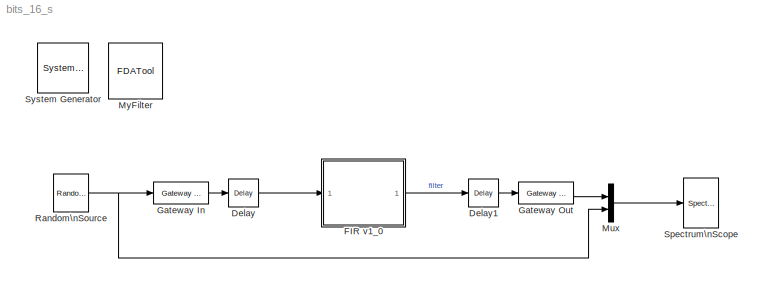
MODEL bits_16_s
KIND model
BLOCK [Reference]  System Generator  REF=xbsIndex_r4/ System Generator
  AttributesFormatString = System\\nGenerator
  FunctionWithSeparateData = off
  Ports = []
  RTWMemSecDataConstants = Inherit from model
  RTWMemSecDataInternal = Inherit from model
  RTWMemSecDataParameters = Inherit from model
  RTWMemSecFuncExecute = Inherit from model
  RTWMemSecFuncInitTerm = Inherit from model
  ShowPortLabels = FromPortIcon
  SourceBlock = xbsIndex_r4/ System Generator
  SourceType = Xilinx System Generator Block
  SystemSampleTime = -1
  Tag = genX
  UserData = DataTag0
  UserDataPersistent = on
  block_type = sysgen
  block_version = 8.2
  clock_wrapper = Clock Enables
  core_generation = According to Block Masks
  dbl_ovrd = According to Block Masks
  dcm_input_clock_period = 100
  deprecated_control = off
  directory = ./netlist
  eval_field = 0
  has_advanced_control = 0
  incr_netlist = off
  infoedit = System Generator
  package = ff896
  part = xc2vp30
  run_coregen = off
  sg_blockgui_xml = <!--  *  <copyright redacted>\n <icon width=\"51\" bg_color=\"beige\" height=\"50\" capti...<+2851ch>
  sg_icon_stat = 51,50,-1,-1,red,beige,0,07734
  sg_mask_display = fprintf('','COMMENT: begin icon graphics');\npatch([0 51 51 0 ],[0 0 50 50 ],[0.93 0.92 0.86]);\npatch([12 4 16 4 12 25 29 33 47 36 25 17 29 17 25 36 47 33 29 25 12 ],[5 13 25 37 45 45 41 45 45 34 45 37 25 13 5 16 5 5 9 5 5 ],[0.6 0.2 0.25]);\nplot([0 0 51 51 0 ],[0 50 50 0 0 ]);\nfprintf('','COMMENT: end icon graphics');\nfprintf('','COMMENT: begin icon text');\nfprintf('','COMMENT: end icon text...<+5ch>
  sggui_pos = -1,-1,-1,-1
  simulink_period = 1/400e6
  speed = -7
  synthesis_tool = XST
  sysclk_period = 100
  testbench = off
  trim_vbits = Everywhere in SubSystem
  xilinxfamily = virtex2p
BLOCK [Reference] Delay  REF=xbsIndex_r4/Delay
  Ports = [1, 1]
  SourceBlock = xbsIndex_r4/Delay
  SourceType = Xilinx Delay Block
  block_type = delay
  block_version = 10.1.2
  dbl_ovrd = off
  en = off
  has_advanced_control = 0
  infoedit = Hardware notes: A delay line is a chain, each link of which is an SRL16 followed by a flip-flop.
  latency = 1
  reg_retiming = off
  sg_icon_stat = 30,28,1,1,white,blue,0,fc531c0e,right
  sg_mask_display = fprintf('','COMMENT: begin icon graphics');\npatch([0 60 60 0 ],[0 0 56 56 ],[0.77 0.82 0.91]);\npatch([15 6 19 6 15 30 34 38 54 41 29 20 32 20 29 41 54 38 34 30 15 ],[6 15 28 41 50 50 46 50 50 37 49 40 28 16 7 19 6 6 10 6 6 ],[0.98 0.96 0.92]);\nplot([0 60 60 0 0 ],[0 0 56 56 0 ]);\nfprintf('','COMMENT: end icon graphics');\nfprintf('','COMMENT: begin icon text');\ncolor('black');disp('z^{-1}','t...<+55ch>  <repeated x25 — deduplicated; at blocks: Delay, Delay1, Delay10, Delay11, Delay12, Delay13, Delay14, Delay15, Delay16, Delay17, Delay18, Delay19, Delay2, Delay20, Delay21, Delay22, +8 more>
  sggui_pos = -1,-1,-1,-1
  xl_area = [0,0,0,0,0,0,0]
  xl_use_area = off
BLOCK [Reference] Delay1  REF=xbsIndex_r4/Delay
  Ports = [1, 1]
  SourceBlock = xbsIndex_r4/Delay
  SourceType = Xilinx Delay Block
  block_type = delay
  block_version = 10.1.2
  dbl_ovrd = off
  en = off
  has_advanced_control = 0
  infoedit = Hardware notes: A delay line is a chain, each link of which is an SRL16 followed by a flip-flop.
  latency = 1
  reg_retiming = off
  sg_icon_stat = 30,28,1,1,white,blue,0,fc531c0e,right
  sggui_pos = -1,-1,-1,-1
  xl_area = [0,0,0,0,0,0,0]
  xl_use_area = off
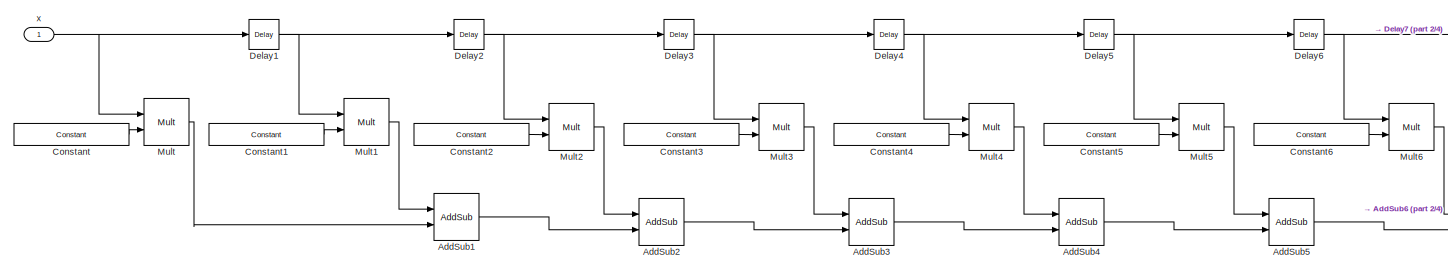
[diagram: FIR v1_0 - part 1/4, left side, full height]
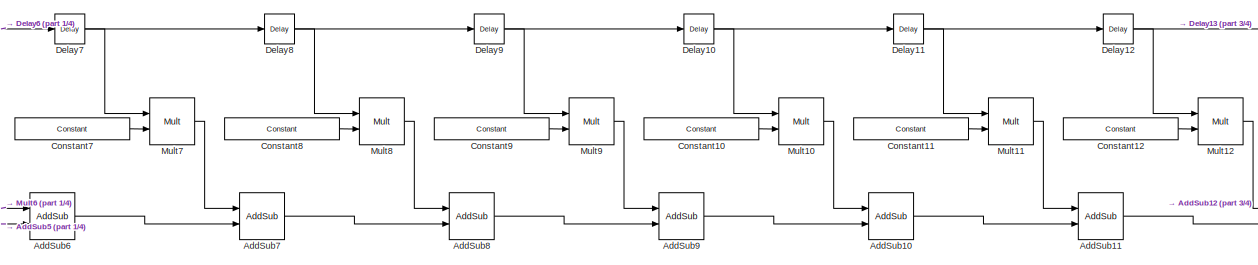
[diagram: FIR v1_0 - part 2/4, center side, full height]
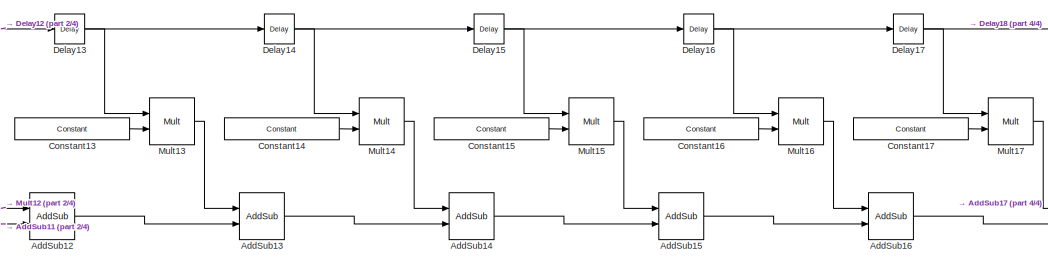
[diagram: FIR v1_0 - part 3/4, center side, full height]
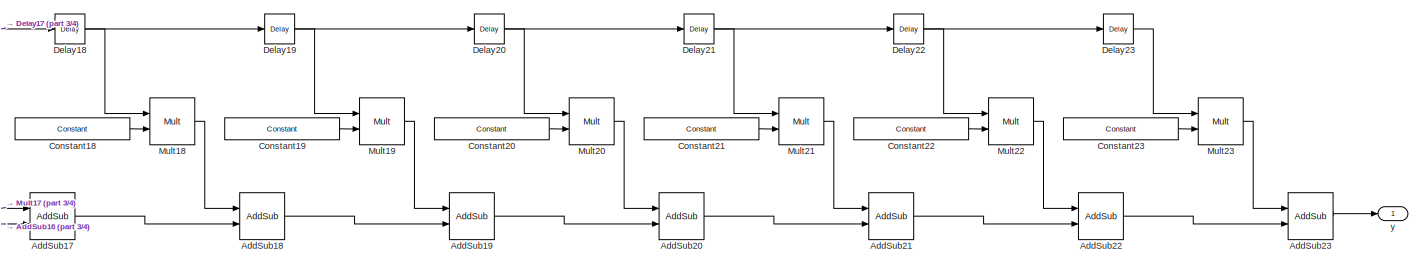
[diagram: FIR v1_0 - part 4/4, right side, full height]
BLOCK [SubSystem] FIR v1_0
  CopyFcn = set_param(gcb, 'MaskSelfModifiable', 'on', 'LinkStatus', 'none');
  FunctionWithSeparateData = off
  MaskCallbackString = |||||
  MaskDescription = Standard FIR Filter
  MaskDisplay = patch([0 iWidth iWidth 0],[0 0 iHeight iHeight] , bg);\npatch(logoX,logoY , fg);\nplot([0 0 iWidth iWidth 0], [0 iHeight iHeight 0 0]);\nport_label('input',1,'x');\nport_label('output',1,'y');\ntext(iCx-20,iCy,'FIR Filter');\n
  MaskEnableString = on,on,on,on,on,on
  MaskHideContents = off
  MaskIconFrame = off
  MaskIconOpaque = on
  MaskIconRotate = none
  MaskIconUnits = autoscale
  MaskInitialization = sav_gcb=gcb;\n[bg,fg] = xlcmap('XBlock',0);\niPos = get_param(sav_gcb,'Position');\niWidth=iPos(3)-iPos(1); iHeight=iPos(4)-iPos(2);\niCx=iWidth/2;\niCy=iHeight/2;\n[logoX, logoY] = xlogo(iPos);\n\n% take the number of coefficients from the vector coef and pass it to the variable coeffs\ncoeffs = length(coef);\n\n% Make sure the entered values for coeffs are positive integers\nncoeffs = round(sum(...<+5268ch>
  MaskPromptString = Use Embedded Multipliers|Coefficients|Number of bits in coefficients|Number of fractional bits in coefficients|Number of bits in input|Number of fractional bits in input
  MaskSelfModifiable = on
  MaskStyleString = checkbox,edit,edit,edit,edit,edit
  MaskTabNameString = ,,,,,
  MaskToolTipString = on,on,on,on,on,on
  MaskTunableValueString = on,on,on,on,on,on
  MaskType = FIR Filter
  MaskValueString = off|xlfda_numerator('MyFilter')|16|15|16|14
  MaskVarAliasString = ,,,,,
  MaskVariables = use_emb=@1;coef=@2;coeff_n_bits=@3;coeff_f_bits=@4;input_bits=@5;input_f_bits=@6;
  MaskVisibilityString = on,on,on,on,on,on
  MinAlgLoopOccurrences = off
  Ports = [1, 1]
  RTWSystemCode = Auto
BLOCK [Reference] FIR v1_0/AddSub1  REF=xbsIndex_r4/AddSub
  Ports = [2, 1]
  SourceBlock = xbsIndex_r4/AddSub
  SourceType = Xilinx Adder/Subtractor Block
  arith_type = Signed  (2's comp)
  bin_pt = input_f_bits+coeff_f_bits
  block_type = addsub
  block_version = 8.2.01
  dbl_ovrd = off
  en = off
  has_advanced_control = 0
  latency = 0
  mode = Addition
  n_bits = input_bits + coeff_n_bits + 1 + (floor(log2(1)))
  overflow = Wrap
  pipelined = off
  precision = User Defined
  quantization = Truncate
  sg_icon_stat = 45,47,1,1,white,blue,0,36a47907,right
  sg_mask_display = fprintf('','COMMENT: begin icon graphics');\npatch([0 60 60 0 ],[0 0 58 58 ],[0.77 0.82 0.91]);\npatch([15 5 19 5 15 30 34 38 54 41 29 20 34 20 29 41 54 38 34 30 15 ],[6 16 30 44 54 54 50 54 54 41 53 44 30 16 7 19 6 6 10 6 6 ],[0.98 0.96 0.92]);\nplot([0 60 60 0 0 ],[0 0 58 58 0 ]);\nfprintf('','COMMENT: end icon graphics');\nfprintf('','COMMENT: begin icon text');\ncolor('black');port_label('inpu...<+163ch>  <repeated x23 — deduplicated; at blocks: AddSub1, AddSub10, AddSub11, AddSub12, AddSub13, AddSub14, AddSub15, AddSub16, AddSub17, AddSub18, AddSub19, AddSub2, AddSub20, AddSub21, AddSub22, AddSub23, +7 more>
  sggui_pos = 138,278,356,343
  use_behavioral_HDL = off
  use_carryin = off
  use_carryout = off
  use_rpm = on
  xl_area = [0,0,0,0,0,0,0]
  xl_use_area = off
BLOCK [Reference] FIR v1_0/AddSub10  REF=xbsIndex_r4/AddSub
  Ports = [2, 1]
  SourceBlock = xbsIndex_r4/AddSub
  SourceType = Xilinx Adder/Subtractor Block
  arith_type = Signed  (2's comp)
  bin_pt = input_f_bits+coeff_f_bits
  block_type = addsub
  block_version = 8.2.01
  dbl_ovrd = off
  en = off
  has_advanced_control = 0
  latency = 0
  mode = Addition
  n_bits = input_bits + coeff_n_bits + 1 + (floor(log2(10)))
  overflow = Wrap
  pipelined = off
  precision = User Defined
  quantization = Truncate
  sg_icon_stat = 45,47,1,1,white,blue,0,36a47907,right
  sggui_pos = 138,278,356,343
  use_behavioral_HDL = off
  use_carryin = off
  use_carryout = off
  use_rpm = on
  xl_area = [0,0,0,0,0,0,0]
  xl_use_area = off
BLOCK [Reference] FIR v1_0/AddSub11  REF=xbsIndex_r4/AddSub
  Ports = [2, 1]
  SourceBlock = xbsIndex_r4/AddSub
  SourceType = Xilinx Adder/Subtractor Block
  arith_type = Signed  (2's comp)
  bin_pt = input_f_bits+coeff_f_bits
  block_type = addsub
  block_version = 8.2.01
  dbl_ovrd = off
  en = off
  has_advanced_control = 0
  latency = 0
  mode = Addition
  n_bits = input_bits + coeff_n_bits + 1 + (floor(log2(11)))
  overflow = Wrap
  pipelined = off
  precision = User Defined
  quantization = Truncate
  sg_icon_stat = 45,47,1,1,white,blue,0,36a47907,right
  sggui_pos = 138,278,356,343
  use_behavioral_HDL = off
  use_carryin = off
  use_carryout = off
  use_rpm = on
  xl_area = [0,0,0,0,0,0,0]
  xl_use_area = off
BLOCK [Reference] FIR v1_0/AddSub12  REF=xbsIndex_r4/AddSub
  Ports = [2, 1]
  SourceBlock = xbsIndex_r4/AddSub
  SourceType = Xilinx Adder/Subtractor Block
  arith_type = Signed  (2's comp)
  bin_pt = input_f_bits+coeff_f_bits
  block_type = addsub
  block_version = 8.2.01
  dbl_ovrd = off
  en = off
  has_advanced_control = 0
  latency = 0
  mode = Addition
  n_bits = input_bits + coeff_n_bits + 1 + (floor(log2(12)))
  overflow = Wrap
  pipelined = off
  precision = User Defined
  quantization = Truncate
  sg_icon_stat = 45,47,1,1,white,blue,0,36a47907,right
  sggui_pos = 138,278,356,343
  use_behavioral_HDL = off
  use_carryin = off
  use_carryout = off
  use_rpm = on
  xl_area = [0,0,0,0,0,0,0]
  xl_use_area = off
BLOCK [Reference] FIR v1_0/AddSub13  REF=xbsIndex_r4/AddSub
  Ports = [2, 1]
  SourceBlock = xbsIndex_r4/AddSub
  SourceType = Xilinx Adder/Subtractor Block
  arith_type = Signed  (2's comp)
  bin_pt = input_f_bits+coeff_f_bits
  block_type = addsub
  block_version = 8.2.01
  dbl_ovrd = off
  en = off
  has_advanced_control = 0
  latency = 0
  mode = Addition
  n_bits = input_bits + coeff_n_bits + 1 + (floor(log2(13)))
  overflow = Wrap
  pipelined = off
  precision = User Defined
  quantization = Truncate
  sg_icon_stat = 45,47,1,1,white,blue,0,36a47907,right
  sggui_pos = 138,278,356,343
  use_behavioral_HDL = off
  use_carryin = off
  use_carryout = off
  use_rpm = on
  xl_area = [0,0,0,0,0,0,0]
  xl_use_area = off
BLOCK [Reference] FIR v1_0/AddSub14  REF=xbsIndex_r4/AddSub
  Ports = [2, 1]
  SourceBlock = xbsIndex_r4/AddSub
  SourceType = Xilinx Adder/Subtractor Block
  arith_type = Signed  (2's comp)
  bin_pt = input_f_bits+coeff_f_bits
  block_type = addsub
  block_version = 8.2.01
  dbl_ovrd = off
  en = off
  has_advanced_control = 0
  latency = 0
  mode = Addition
  n_bits = input_bits + coeff_n_bits + 1 + (floor(log2(14)))
  overflow = Wrap
  pipelined = off
  precision = User Defined
  quantization = Truncate
  sg_icon_stat = 45,47,1,1,white,blue,0,36a47907,right
  sggui_pos = 138,278,356,343
  use_behavioral_HDL = off
  use_carryin = off
  use_carryout = off
  use_rpm = on
  xl_area = [0,0,0,0,0,0,0]
  xl_use_area = off
BLOCK [Reference] FIR v1_0/AddSub15  REF=xbsIndex_r4/AddSub
  Ports = [2, 1]
  SourceBlock = xbsIndex_r4/AddSub
  SourceType = Xilinx Adder/Subtractor Block
  arith_type = Signed  (2's comp)
  bin_pt = input_f_bits+coeff_f_bits
  block_type = addsub
  block_version = 8.2.01
  dbl_ovrd = off
  en = off
  has_advanced_control = 0
  latency = 0
  mode = Addition
  n_bits = input_bits + coeff_n_bits + 1 + (floor(log2(15)))
  overflow = Wrap
  pipelined = off
  precision = User Defined
  quantization = Truncate
  sg_icon_stat = 45,47,1,1,white,blue,0,36a47907,right
  sggui_pos = 138,278,356,343
  use_behavioral_HDL = off
  use_carryin = off
  use_carryout = off
  use_rpm = on
  xl_area = [0,0,0,0,0,0,0]
  xl_use_area = off
BLOCK [Reference] FIR v1_0/AddSub16  REF=xbsIndex_r4/AddSub
  Ports = [2, 1]
  SourceBlock = xbsIndex_r4/AddSub
  SourceType = Xilinx Adder/Subtractor Block
  arith_type = Signed  (2's comp)
  bin_pt = input_f_bits+coeff_f_bits
  block_type = addsub
  block_version = 8.2.01
  dbl_ovrd = off
  en = off
  has_advanced_control = 0
  latency = 0
  mode = Addition
  n_bits = input_bits + coeff_n_bits + 1 + (floor(log2(16)))
  overflow = Wrap
  pipelined = off
  precision = User Defined
  quantization = Truncate
  sg_icon_stat = 45,47,1,1,white,blue,0,36a47907,right
  sggui_pos = 138,278,356,343
  use_behavioral_HDL = off
  use_carryin = off
  use_carryout = off
  use_rpm = on
  xl_area = [0,0,0,0,0,0,0]
  xl_use_area = off
BLOCK [Reference] FIR v1_0/AddSub17  REF=xbsIndex_r4/AddSub
  Ports = [2, 1]
  SourceBlock = xbsIndex_r4/AddSub
  SourceType = Xilinx Adder/Subtractor Block
  arith_type = Signed  (2's comp)
  bin_pt = input_f_bits+coeff_f_bits
  block_type = addsub
  block_version = 8.2.01
  dbl_ovrd = off
  en = off
  has_advanced_control = 0
  latency = 0
  mode = Addition
  n_bits = input_bits + coeff_n_bits + 1 + (floor(log2(17)))
  overflow = Wrap
  pipelined = off
  precision = User Defined
  quantization = Truncate
  sg_icon_stat = 45,47,1,1,white,blue,0,36a47907,right
  sggui_pos = 138,278,356,343
  use_behavioral_HDL = off
  use_carryin = off
  use_carryout = off
  use_rpm = on
  xl_area = [0,0,0,0,0,0,0]
  xl_use_area = off
BLOCK [Reference] FIR v1_0/AddSub18  REF=xbsIndex_r4/AddSub
  Ports = [2, 1]
  SourceBlock = xbsIndex_r4/AddSub
  SourceType = Xilinx Adder/Subtractor Block
  arith_type = Signed  (2's comp)
  bin_pt = input_f_bits+coeff_f_bits
  block_type = addsub
  block_version = 8.2.01
  dbl_ovrd = off
  en = off
  has_advanced_control = 0
  latency = 0
  mode = Addition
  n_bits = input_bits + coeff_n_bits + 1 + (floor(log2(18)))
  overflow = Wrap
  pipelined = off
  precision = User Defined
  quantization = Truncate
  sg_icon_stat = 45,47,1,1,white,blue,0,36a47907,right
  sggui_pos = 138,278,356,343
  use_behavioral_HDL = off
  use_carryin = off
  use_carryout = off
  use_rpm = on
  xl_area = [0,0,0,0,0,0,0]
  xl_use_area = off
BLOCK [Reference] FIR v1_0/AddSub19  REF=xbsIndex_r4/AddSub
  Ports = [2, 1]
  SourceBlock = xbsIndex_r4/AddSub
  SourceType = Xilinx Adder/Subtractor Block
  arith_type = Signed  (2's comp)
  bin_pt = input_f_bits+coeff_f_bits
  block_type = addsub
  block_version = 8.2.01
  dbl_ovrd = off
  en = off
  has_advanced_control = 0
  latency = 0
  mode = Addition
  n_bits = input_bits + coeff_n_bits + 1 + (floor(log2(19)))
  overflow = Wrap
  pipelined = off
  precision = User Defined
  quantization = Truncate
  sg_icon_stat = 45,47,1,1,white,blue,0,36a47907,right
  sggui_pos = 138,278,356,343
  use_behavioral_HDL = off
  use_carryin = off
  use_carryout = off
  use_rpm = on
  xl_area = [0,0,0,0,0,0,0]
  xl_use_area = off
BLOCK [Reference] FIR v1_0/AddSub2  REF=xbsIndex_r4/AddSub
  Ports = [2, 1]
  SourceBlock = xbsIndex_r4/AddSub
  SourceType = Xilinx Adder/Subtractor Block
  arith_type = Signed  (2's comp)
  bin_pt = input_f_bits+coeff_f_bits
  block_type = addsub
  block_version = 8.2.01
  dbl_ovrd = off
  en = off
  has_advanced_control = 0
  latency = 0
  mode = Addition
  n_bits = input_bits + coeff_n_bits + 1 + (floor(log2(2)))
  overflow = Wrap
  pipelined = off
  precision = User Defined
  quantization = Truncate
  sg_icon_stat = 45,47,1,1,white,blue,0,36a47907,right
  sggui_pos = 138,278,356,343
  use_behavioral_HDL = off
  use_carryin = off
  use_carryout = off
  use_rpm = on
  xl_area = [0,0,0,0,0,0,0]
  xl_use_area = off
BLOCK [Reference] FIR v1_0/AddSub20  REF=xbsIndex_r4/AddSub
  Ports = [2, 1]
  SourceBlock = xbsIndex_r4/AddSub
  SourceType = Xilinx Adder/Subtractor Block
  arith_type = Signed  (2's comp)
  bin_pt = input_f_bits+coeff_f_bits
  block_type = addsub
  block_version = 8.2.01
  dbl_ovrd = off
  en = off
  has_advanced_control = 0
  latency = 0
  mode = Addition
  n_bits = input_bits + coeff_n_bits + 1 + (floor(log2(20)))
  overflow = Wrap
  pipelined = off
  precision = User Defined
  quantization = Truncate
  sg_icon_stat = 45,47,1,1,white,blue,0,36a47907,right
  sggui_pos = 138,278,356,343
  use_behavioral_HDL = off
  use_carryin = off
  use_carryout = off
  use_rpm = on
  xl_area = [0,0,0,0,0,0,0]
  xl_use_area = off
BLOCK [Reference] FIR v1_0/AddSub21  REF=xbsIndex_r4/AddSub
  Ports = [2, 1]
  SourceBlock = xbsIndex_r4/AddSub
  SourceType = Xilinx Adder/Subtractor Block
  arith_type = Signed  (2's comp)
  bin_pt = input_f_bits+coeff_f_bits
  block_type = addsub
  block_version = 8.2.01
  dbl_ovrd = off
  en = off
  has_advanced_control = 0
  latency = 0
  mode = Addition
  n_bits = input_bits + coeff_n_bits + 1 + (floor(log2(21)))
  overflow = Wrap
  pipelined = off
  precision = User Defined
  quantization = Truncate
  sg_icon_stat = 45,47,1,1,white,blue,0,36a47907,right
  sggui_pos = 138,278,356,343
  use_behavioral_HDL = off
  use_carryin = off
  use_carryout = off
  use_rpm = on
  xl_area = [0,0,0,0,0,0,0]
  xl_use_area = off
BLOCK [Reference] FIR v1_0/AddSub22  REF=xbsIndex_r4/AddSub
  Ports = [2, 1]
  SourceBlock = xbsIndex_r4/AddSub
  SourceType = Xilinx Adder/Subtractor Block
  arith_type = Signed  (2's comp)
  bin_pt = input_f_bits+coeff_f_bits
  block_type = addsub
  block_version = 8.2.01
  dbl_ovrd = off
  en = off
  has_advanced_control = 0
  latency = 0
  mode = Addition
  n_bits = input_bits + coeff_n_bits + 1 + (floor(log2(22)))
  overflow = Wrap
  pipelined = off
  precision = User Defined
  quantization = Truncate
  sg_icon_stat = 45,47,1,1,white,blue,0,36a47907,right
  sggui_pos = 138,278,356,343
  use_behavioral_HDL = off
  use_carryin = off
  use_carryout = off
  use_rpm = on
  xl_area = [0,0,0,0,0,0,0]
  xl_use_area = off
BLOCK [Reference] FIR v1_0/AddSub23  REF=xbsIndex_r4/AddSub
  Ports = [2, 1]
  SourceBlock = xbsIndex_r4/AddSub
  SourceType = Xilinx Adder/Subtractor Block
  arith_type = Signed  (2's comp)
  bin_pt = input_f_bits+coeff_f_bits
  block_type = addsub
  block_version = 8.2.01
  dbl_ovrd = off
  en = off
  has_advanced_control = 0
  latency = 0
  mode = Addition
  n_bits = input_bits + coeff_n_bits + 1 + (floor(log2(23)))
  overflow = Wrap
  pipelined = off
  precision = User Defined
  quantization = Truncate
  sg_icon_stat = 45,47,1,1,white,blue,0,36a47907,right
  sggui_pos = 138,278,356,343
  use_behavioral_HDL = off
  use_carryin = off
  use_carryout = off
  use_rpm = on
  xl_area = [0,0,0,0,0,0,0]
  xl_use_area = off
BLOCK [Reference] FIR v1_0/AddSub3  REF=xbsIndex_r4/AddSub
  Ports = [2, 1]
  SourceBlock = xbsIndex_r4/AddSub
  SourceType = Xilinx Adder/Subtractor Block
  arith_type = Signed  (2's comp)
  bin_pt = input_f_bits+coeff_f_bits
  block_type = addsub
  block_version = 8.2.01
  dbl_ovrd = off
  en = off
  has_advanced_control = 0
  latency = 0
  mode = Addition
  n_bits = input_bits + coeff_n_bits + 1 + (floor(log2(3)))
  overflow = Wrap
  pipelined = off
  precision = User Defined
  quantization = Truncate
  sg_icon_stat = 45,47,1,1,white,blue,0,36a47907,right
  sggui_pos = 138,278,356,343
  use_behavioral_HDL = off
  use_carryin = off
  use_carryout = off
  use_rpm = on
  xl_area = [0,0,0,0,0,0,0]
  xl_use_area = off
BLOCK [Reference] FIR v1_0/AddSub4  REF=xbsIndex_r4/AddSub
  Ports = [2, 1]
  SourceBlock = xbsIndex_r4/AddSub
  SourceType = Xilinx Adder/Subtractor Block
  arith_type = Signed  (2's comp)
  bin_pt = input_f_bits+coeff_f_bits
  block_type = addsub
  block_version = 8.2.01
  dbl_ovrd = off
  en = off
  has_advanced_control = 0
  latency = 0
  mode = Addition
  n_bits = input_bits + coeff_n_bits + 1 + (floor(log2(4)))
  overflow = Wrap
  pipelined = off
  precision = User Defined
  quantization = Truncate
  sg_icon_stat = 45,47,1,1,white,blue,0,36a47907,right
  sggui_pos = 138,278,356,343
  use_behavioral_HDL = off
  use_carryin = off
  use_carryout = off
  use_rpm = on
  xl_area = [0,0,0,0,0,0,0]
  xl_use_area = off
BLOCK [Reference] FIR v1_0/AddSub5  REF=xbsIndex_r4/AddSub
  Ports = [2, 1]
  SourceBlock = xbsIndex_r4/AddSub
  SourceType = Xilinx Adder/Subtractor Block
  arith_type = Signed  (2's comp)
  bin_pt = input_f_bits+coeff_f_bits
  block_type = addsub
  block_version = 8.2.01
  dbl_ovrd = off
  en = off
  has_advanced_control = 0
  latency = 0
  mode = Addition
  n_bits = input_bits + coeff_n_bits + 1 + (floor(log2(5)))
  overflow = Wrap
  pipelined = off
  precision = User Defined
  quantization = Truncate
  sg_icon_stat = 45,47,1,1,white,blue,0,36a47907,right
  sggui_pos = 138,278,356,343
  use_behavioral_HDL = off
  use_carryin = off
  use_carryout = off
  use_rpm = on
  xl_area = [0,0,0,0,0,0,0]
  xl_use_area = off
BLOCK [Reference] FIR v1_0/AddSub6  REF=xbsIndex_r4/AddSub
  Ports = [2, 1]
  SourceBlock = xbsIndex_r4/AddSub
  SourceType = Xilinx Adder/Subtractor Block
  arith_type = Signed  (2's comp)
  bin_pt = input_f_bits+coeff_f_bits
  block_type = addsub
  block_version = 8.2.01
  dbl_ovrd = off
  en = off
  has_advanced_control = 0
  latency = 0
  mode = Addition
  n_bits = input_bits + coeff_n_bits + 1 + (floor(log2(6)))
  overflow = Wrap
  pipelined = off
  precision = User Defined
  quantization = Truncate
  sg_icon_stat = 45,47,1,1,white,blue,0,36a47907,right
  sggui_pos = 138,278,356,343
  use_behavioral_HDL = off
  use_carryin = off
  use_carryout = off
  use_rpm = on
  xl_area = [0,0,0,0,0,0,0]
  xl_use_area = off
BLOCK [Reference] FIR v1_0/AddSub7  REF=xbsIndex_r4/AddSub
  Ports = [2, 1]
  SourceBlock = xbsIndex_r4/AddSub
  SourceType = Xilinx Adder/Subtractor Block
  arith_type = Signed  (2's comp)
  bin_pt = input_f_bits+coeff_f_bits
  block_type = addsub
  block_version = 8.2.01
  dbl_ovrd = off
  en = off
  has_advanced_control = 0
  latency = 0
  mode = Addition
  n_bits = input_bits + coeff_n_bits + 1 + (floor(log2(7)))
  overflow = Wrap
  pipelined = off
  precision = User Defined
  quantization = Truncate
  sg_icon_stat = 45,47,1,1,white,blue,0,36a47907,right
  sggui_pos = 138,278,356,343
  use_behavioral_HDL = off
  use_carryin = off
  use_carryout = off
  use_rpm = on
  xl_area = [0,0,0,0,0,0,0]
  xl_use_area = off
BLOCK [Reference] FIR v1_0/AddSub8  REF=xbsIndex_r4/AddSub
  Ports = [2, 1]
  SourceBlock = xbsIndex_r4/AddSub
  SourceType = Xilinx Adder/Subtractor Block
  arith_type = Signed  (2's comp)
  bin_pt = input_f_bits+coeff_f_bits
  block_type = addsub
  block_version = 8.2.01
  dbl_ovrd = off
  en = off
  has_advanced_control = 0
  latency = 0
  mode = Addition
  n_bits = input_bits + coeff_n_bits + 1 + (floor(log2(8)))
  overflow = Wrap
  pipelined = off
  precision = User Defined
  quantization = Truncate
  sg_icon_stat = 45,47,1,1,white,blue,0,36a47907,right
  sggui_pos = 138,278,356,343
  use_behavioral_HDL = off
  use_carryin = off
  use_carryout = off
  use_rpm = on
  xl_area = [0,0,0,0,0,0,0]
  xl_use_area = off
BLOCK [Reference] FIR v1_0/AddSub9  REF=xbsIndex_r4/AddSub
  Ports = [2, 1]
  SourceBlock = xbsIndex_r4/AddSub
  SourceType = Xilinx Adder/Subtractor Block
  arith_type = Signed  (2's comp)
  bin_pt = input_f_bits+coeff_f_bits
  block_type = addsub
  block_version = 8.2.01
  dbl_ovrd = off
  en = off
  has_advanced_control = 0
  latency = 0
  mode = Addition
  n_bits = input_bits + coeff_n_bits + 1 + (floor(log2(9)))
  overflow = Wrap
  pipelined = off
  precision = User Defined
  quantization = Truncate
  sg_icon_stat = 45,47,1,1,white,blue,0,36a47907,right
  sggui_pos = 138,278,356,343
  use_behavioral_HDL = off
  use_carryin = off
  use_carryout = off
  use_rpm = on
  xl_area = [0,0,0,0,0,0,0]
  xl_use_area = off
BLOCK [Reference] FIR v1_0/Constant  REF=xbsIndex_r4/Constant
  Ports = [0, 1]
  SourceBlock = xbsIndex_r4/Constant
  SourceType = Xilinx Constant Block Block
  arith_type = Signed (2's comp)
  bin_pt = coeff_f_bits
  block_type = constant
  block_version = 8.2.01
  carry = CIN
  const = coef(1)
  dbl_ovrd = off
  dsp48_infoedit = The use of this block for DSP48 instructions is deprecated.  Please use the Opmode block.
  equ = P=C
  explicit_period = off
  has_advanced_control = 0
  inp1 = P
  inp2 = PCIN>>17
  n_bits = coeff_n_bits
  opr = +
  opselect = C
  period = 1
  sg_icon_stat = 115,22,1,1,white,blue,0,e6cb3858,right
  sg_mask_display = fprintf('','COMMENT: begin icon graphics');\npatch([0 55 55 0 ],[0 0 26 26 ],[0.77 0.82 0.91]);\npatch([20 16 22 16 20 27 29 31 38 32 26 22 28 22 26 32 38 31 29 27 20 ],[3 7 13 19 23 23 21 23 23 17 23 19 13 7 3 9 3 3 5 3 3 ],[0.98 0.96 0.92]);\nplot([0 55 55 0 0 ],[0 0 26 26 0 ]);\nfprintf('','COMMENT: end icon graphics');\nfprintf('','COMMENT: begin icon text');\ncolor('black');port_label('output...<+67ch>  <repeated x4 — deduplicated; at blocks: Constant, Constant20, Constant23, Constant3>
  sggui_pos = 545,354,413,401
BLOCK [Reference] FIR v1_0/Constant1  REF=xbsIndex_r4/Constant
  Ports = [0, 1]
  SourceBlock = xbsIndex_r4/Constant
  SourceType = Xilinx Constant Block Block
  arith_type = Signed (2's comp)
  bin_pt = coeff_f_bits
  block_type = constant
  block_version = 8.2.01
  carry = CIN
  const = coef(2)
  dbl_ovrd = off
  dsp48_infoedit = The use of this block for DSP48 instructions is deprecated.  Please use the Opmode block.
  equ = P=C
  explicit_period = off
  has_advanced_control = 0
  inp1 = P
  inp2 = PCIN>>17
  n_bits = coeff_n_bits
  opr = +
  opselect = C
  period = 1
  sg_icon_stat = 115,22,1,1,white,blue,0,218ddc78,right
  sg_mask_display = fprintf('','COMMENT: begin icon graphics');\npatch([0 55 55 0 ],[0 0 26 26 ],[0.77 0.82 0.91]);\npatch([20 16 22 16 20 27 29 31 38 32 26 22 28 22 26 32 38 31 29 27 20 ],[3 7 13 19 23 23 21 23 23 17 23 19 13 7 3 9 3 3 5 3 3 ],[0.98 0.96 0.92]);\nplot([0 55 55 0 0 ],[0 0 26 26 0 ]);\nfprintf('','COMMENT: end icon graphics');\nfprintf('','COMMENT: begin icon text');\ncolor('black');port_label('output...<+65ch>  <repeated x4 — deduplicated; at blocks: Constant1, Constant15, Constant22, Constant8>
  sggui_pos = 545,354,413,401
BLOCK [Reference] FIR v1_0/Constant10  REF=xbsIndex_r4/Constant
  Ports = [0, 1]
  SourceBlock = xbsIndex_r4/Constant
  SourceType = Xilinx Constant Block Block
  arith_type = Signed (2's comp)
  bin_pt = coeff_f_bits
  block_type = constant
  block_version = 8.2.01
  carry = CIN
  const = coef(11)
  dbl_ovrd = off
  dsp48_infoedit = The use of this block for DSP48 instructions is deprecated.  Please use the Opmode block.
  equ = P=C
  explicit_period = off
  has_advanced_control = 0
  inp1 = P
  inp2 = PCIN>>17
  n_bits = coeff_n_bits
  opr = +
  opselect = C
  period = 1
  sg_icon_stat = 115,22,1,1,white,blue,0,67aabf01,right
  sg_mask_display = fprintf('','COMMENT: begin icon graphics');\npatch([0 55 55 0 ],[0 0 26 26 ],[0.77 0.82 0.91]);\npatch([20 16 22 16 20 27 29 31 38 32 26 22 28 22 26 32 38 31 29 27 20 ],[3 7 13 19 23 23 21 23 23 17 23 19 13 7 3 9 3 3 5 3 3 ],[0.98 0.96 0.92]);\nplot([0 55 55 0 0 ],[0 0 26 26 0 ]);\nfprintf('','COMMENT: end icon graphics');\nfprintf('','COMMENT: begin icon text');\ncolor('black');port_label('output...<+66ch>  <repeated x14 — deduplicated; at blocks: Constant10, Constant11, Constant12, Constant13, Constant16, Constant17, Constant18, Constant19, Constant2, Constant21, Constant4, Constant5, Constant6, Constant7>
  sggui_pos = 545,354,413,401
BLOCK [Reference] FIR v1_0/Constant11  REF=xbsIndex_r4/Constant
  Ports = [0, 1]
  SourceBlock = xbsIndex_r4/Constant
  SourceType = Xilinx Constant Block Block
  arith_type = Signed (2's comp)
  bin_pt = coeff_f_bits
  block_type = constant
  block_version = 8.2.01
  carry = CIN
  const = coef(12)
  dbl_ovrd = off
  dsp48_infoedit = The use of this block for DSP48 instructions is deprecated.  Please use the Opmode block.
  equ = P=C
  explicit_period = off
  has_advanced_control = 0
  inp1 = P
  inp2 = PCIN>>17
  n_bits = coeff_n_bits
  opr = +
  opselect = C
  period = 1
  sg_icon_stat = 115,22,1,1,white,blue,0,668f8392,right
  sggui_pos = 545,354,413,401
BLOCK [Reference] FIR v1_0/Constant12  REF=xbsIndex_r4/Constant
  Ports = [0, 1]
  SourceBlock = xbsIndex_r4/Constant
  SourceType = Xilinx Constant Block Block
  arith_type = Signed (2's comp)
  bin_pt = coeff_f_bits
  block_type = constant
  block_version = 8.2.01
  carry = CIN
  const = coef(13)
  dbl_ovrd = off
  dsp48_infoedit = The use of this block for DSP48 instructions is deprecated.  Please use the Opmode block.
  equ = P=C
  explicit_period = off
  has_advanced_control = 0
  inp1 = P
  inp2 = PCIN>>17
  n_bits = coeff_n_bits
  opr = +
  opselect = C
  period = 1
  sg_icon_stat = 115,22,1,1,white,blue,0,668f8392,right
  sggui_pos = 545,354,413,401
BLOCK [Reference] FIR v1_0/Constant13  REF=xbsIndex_r4/Constant
  Ports = [0, 1]
  SourceBlock = xbsIndex_r4/Constant
  SourceType = Xilinx Constant Block Block
  arith_type = Signed (2's comp)
  bin_pt = coeff_f_bits
  block_type = constant
  block_version = 8.2.01
  carry = CIN
  const = coef(14)
  dbl_ovrd = off
  dsp48_infoedit = The use of this block for DSP48 instructions is deprecated.  Please use the Opmode block.
  equ = P=C
  explicit_period = off
  has_advanced_control = 0
  inp1 = P
  inp2 = PCIN>>17
  n_bits = coeff_n_bits
  opr = +
  opselect = C
  period = 1
  sg_icon_stat = 115,22,1,1,white,blue,0,67aabf01,right
  sggui_pos = 545,354,413,401
BLOCK [Reference] FIR v1_0/Constant14  REF=xbsIndex_r4/Constant
  Ports = [0, 1]
  SourceBlock = xbsIndex_r4/Constant
  SourceType = Xilinx Constant Block Block
  arith_type = Signed (2's comp)
  bin_pt = coeff_f_bits
  block_type = constant
  block_version = 8.2.01
  carry = CIN
  const = coef(15)
  dbl_ovrd = off
  dsp48_infoedit = The use of this block for DSP48 instructions is deprecated.  Please use the Opmode block.
  equ = P=C
  explicit_period = off
  has_advanced_control = 0
  inp1 = P
  inp2 = PCIN>>17
  n_bits = coeff_n_bits
  opr = +
  opselect = C
  period = 1
  sg_icon_stat = 115,22,1,1,white,blue,0,87a3407a,right
  sg_mask_display = fprintf('','COMMENT: begin icon graphics');\npatch([0 55 55 0 ],[0 0 26 26 ],[0.77 0.82 0.91]);\npatch([20 16 22 16 20 27 29 31 38 32 26 22 28 22 26 32 38 31 29 27 20 ],[3 7 13 19 23 23 21 23 23 17 23 19 13 7 3 9 3 3 5 3 3 ],[0.98 0.96 0.92]);\nplot([0 55 55 0 0 ],[0 0 26 26 0 ]);\nfprintf('','COMMENT: end icon graphics');\nfprintf('','COMMENT: begin icon text');\ncolor('black');port_label('output...<+64ch>
  sggui_pos = 545,354,413,401
BLOCK [Reference] FIR v1_0/Constant15  REF=xbsIndex_r4/Constant
  Ports = [0, 1]
  SourceBlock = xbsIndex_r4/Constant
  SourceType = Xilinx Constant Block Block
  arith_type = Signed (2's comp)
  bin_pt = coeff_f_bits
  block_type = constant
  block_version = 8.2.01
  carry = CIN
  const = coef(16)
  dbl_ovrd = off
  dsp48_infoedit = The use of this block for DSP48 instructions is deprecated.  Please use the Opmode block.
  equ = P=C
  explicit_period = off
  has_advanced_control = 0
  inp1 = P
  inp2 = PCIN>>17
  n_bits = coeff_n_bits
  opr = +
  opselect = C
  period = 1
  sg_icon_stat = 115,22,1,1,white,blue,0,f4adb813,right
  sggui_pos = 545,354,413,401
BLOCK [Reference] FIR v1_0/Constant16  REF=xbsIndex_r4/Constant
  Ports = [0, 1]
  SourceBlock = xbsIndex_r4/Constant
  SourceType = Xilinx Constant Block Block
  arith_type = Signed (2's comp)
  bin_pt = coeff_f_bits
  block_type = constant
  block_version = 8.2.01
  carry = CIN
  const = coef(17)
  dbl_ovrd = off
  dsp48_infoedit = The use of this block for DSP48 instructions is deprecated.  Please use the Opmode block.
  equ = P=C
  explicit_period = off
  has_advanced_control = 0
  inp1 = P
  inp2 = PCIN>>17
  n_bits = coeff_n_bits
  opr = +
  opselect = C
  period = 1
  sg_icon_stat = 115,22,1,1,white,blue,0,48cd3841,right
  sggui_pos = 545,354,413,401
BLOCK [Reference] FIR v1_0/Constant17  REF=xbsIndex_r4/Constant
  Ports = [0, 1]
  SourceBlock = xbsIndex_r4/Constant
  SourceType = Xilinx Constant Block Block
  arith_type = Signed (2's comp)
  bin_pt = coeff_f_bits
  block_type = constant
  block_version = 8.2.01
  carry = CIN
  const = coef(18)
  dbl_ovrd = off
  dsp48_infoedit = The use of this block for DSP48 instructions is deprecated.  Please use the Opmode block.
  equ = P=C
  explicit_period = off
  has_advanced_control = 0
  inp1 = P
  inp2 = PCIN>>17
  n_bits = coeff_n_bits
  opr = +
  opselect = C
  period = 1
  sg_icon_stat = 115,22,1,1,white,blue,0,21e0d111,right
  sggui_pos = 545,354,413,401
BLOCK [Reference] FIR v1_0/Constant18  REF=xbsIndex_r4/Constant
  Ports = [0, 1]
  SourceBlock = xbsIndex_r4/Constant
  SourceType = Xilinx Constant Block Block
  arith_type = Signed (2's comp)
  bin_pt = coeff_f_bits
  block_type = constant
  block_version = 8.2.01
  carry = CIN
  const = coef(19)
  dbl_ovrd = off
  dsp48_infoedit = The use of this block for DSP48 instructions is deprecated.  Please use the Opmode block.
  equ = P=C
  explicit_period = off
  has_advanced_control = 0
  inp1 = P
  inp2 = PCIN>>17
  n_bits = coeff_n_bits
  opr = +
  opselect = C
  period = 1
  sg_icon_stat = 115,22,1,1,white,blue,0,7c3055cd,right
  sggui_pos = 545,354,413,401
BLOCK [Reference] FIR v1_0/Constant19  REF=xbsIndex_r4/Constant
  Ports = [0, 1]
  SourceBlock = xbsIndex_r4/Constant
  SourceType = Xilinx Constant Block Block
  arith_type = Signed (2's comp)
  bin_pt = coeff_f_bits
  block_type = constant
  block_version = 8.2.01
  carry = CIN
  const = coef(20)
  dbl_ovrd = off
  dsp48_infoedit = The use of this block for DSP48 instructions is deprecated.  Please use the Opmode block.
  equ = P=C
  explicit_period = off
  has_advanced_control = 0
  inp1 = P
  inp2 = PCIN>>17
  n_bits = coeff_n_bits
  opr = +
  opselect = C
  period = 1
  sg_icon_stat = 115,22,1,1,white,blue,0,4e6b33bf,right
  sggui_pos = 545,354,413,401
BLOCK [Reference] FIR v1_0/Constant2  REF=xbsIndex_r4/Constant
  Ports = [0, 1]
  SourceBlock = xbsIndex_r4/Constant
  SourceType = Xilinx Constant Block Block
  arith_type = Signed (2's comp)
  bin_pt = coeff_f_bits
  block_type = constant
  block_version = 8.2.01
  carry = CIN
  const = coef(3)
  dbl_ovrd = off
  dsp48_infoedit = The use of this block for DSP48 instructions is deprecated.  Please use the Opmode block.
  equ = P=C
  explicit_period = off
  has_advanced_control = 0
  inp1 = P
  inp2 = PCIN>>17
  n_bits = coeff_n_bits
  opr = +
  opselect = C
  period = 1
  sg_icon_stat = 115,22,1,1,white,blue,0,2fbb817a,right
  sggui_pos = 545,354,413,401
BLOCK [Reference] FIR v1_0/Constant20  REF=xbsIndex_r4/Constant
  Ports = [0, 1]
  SourceBlock = xbsIndex_r4/Constant
  SourceType = Xilinx Constant Block Block
  arith_type = Signed (2's comp)
  bin_pt = coeff_f_bits
  block_type = constant
  block_version = 8.2.01
  carry = CIN
  const = coef(21)
  dbl_ovrd = off
  dsp48_infoedit = The use of this block for DSP48 instructions is deprecated.  Please use the Opmode block.
  equ = P=C
  explicit_period = off
  has_advanced_control = 0
  inp1 = P
  inp2 = PCIN>>17
  n_bits = coeff_n_bits
  opr = +
  opselect = C
  period = 1
  sg_icon_stat = 115,22,1,1,white,blue,0,95ea31b4,right
  sggui_pos = 545,354,413,401
BLOCK [Reference] FIR v1_0/Constant21  REF=xbsIndex_r4/Constant
  Ports = [0, 1]
  SourceBlock = xbsIndex_r4/Constant
  SourceType = Xilinx Constant Block Block
  arith_type = Signed (2's comp)
  bin_pt = coeff_f_bits
  block_type = constant
  block_version = 8.2.01
  carry = CIN
  const = coef(22)
  dbl_ovrd = off
  dsp48_infoedit = The use of this block for DSP48 instructions is deprecated.  Please use the Opmode block.
  equ = P=C
  explicit_period = off
  has_advanced_control = 0
  inp1 = P
  inp2 = PCIN>>17
  n_bits = coeff_n_bits
  opr = +
  opselect = C
  period = 1
  sg_icon_stat = 115,22,1,1,white,blue,0,2fbb817a,right
  sggui_pos = 545,354,413,401
BLOCK [Reference] FIR v1_0/Constant22  REF=xbsIndex_r4/Constant
  Ports = [0, 1]
  SourceBlock = xbsIndex_r4/Constant
  SourceType = Xilinx Constant Block Block
  arith_type = Signed (2's comp)
  bin_pt = coeff_f_bits
  block_type = constant
  block_version = 8.2.01
  carry = CIN
  const = coef(23)
  dbl_ovrd = off
  dsp48_infoedit = The use of this block for DSP48 instructions is deprecated.  Please use the Opmode block.
  equ = P=C
  explicit_period = off
  has_advanced_control = 0
  inp1 = P
  inp2 = PCIN>>17
  n_bits = coeff_n_bits
  opr = +
  opselect = C
  period = 1
  sg_icon_stat = 115,22,1,1,white,blue,0,218ddc78,right
  sggui_pos = 545,354,413,401
BLOCK [Reference] FIR v1_0/Constant23  REF=xbsIndex_r4/Constant
  Ports = [0, 1]
  SourceBlock = xbsIndex_r4/Constant
  SourceType = Xilinx Constant Block Block
  arith_type = Signed (2's comp)
  bin_pt = coeff_f_bits
  block_type = constant
  block_version = 8.2.01
  carry = CIN
  const = coef(24)
  dbl_ovrd = off
  dsp48_infoedit = The use of this block for DSP48 instructions is deprecated.  Please use the Opmode block.
  equ = P=C
  explicit_period = off
  has_advanced_control = 0
  inp1 = P
  inp2 = PCIN>>17
  n_bits = coeff_n_bits
  opr = +
  opselect = C
  period = 1
  sg_icon_stat = 115,22,1,1,white,blue,0,e6cb3858,right
  sggui_pos = 545,354,413,401
BLOCK [Reference] FIR v1_0/Constant3  REF=xbsIndex_r4/Constant
  Ports = [0, 1]
  SourceBlock = xbsIndex_r4/Constant
  SourceType = Xilinx Constant Block Block
  arith_type = Signed (2's comp)
  bin_pt = coeff_f_bits
  block_type = constant
  block_version = 8.2.01
  carry = CIN
  const = coef(4)
  dbl_ovrd = off
  dsp48_infoedit = The use of this block for DSP48 instructions is deprecated.  Please use the Opmode block.
  equ = P=C
  explicit_period = off
  has_advanced_control = 0
  inp1 = P
  inp2 = PCIN>>17
  n_bits = coeff_n_bits
  opr = +
  opselect = C
  period = 1
  sg_icon_stat = 115,22,1,1,white,blue,0,95ea31b4,right
  sggui_pos = 545,354,413,401
BLOCK [Reference] FIR v1_0/Constant4  REF=xbsIndex_r4/Constant
  Ports = [0, 1]
  SourceBlock = xbsIndex_r4/Constant
  SourceType = Xilinx Constant Block Block
  arith_type = Signed (2's comp)
  bin_pt = coeff_f_bits
  block_type = constant
  block_version = 8.2.01
  carry = CIN
  const = coef(5)
  dbl_ovrd = off
  dsp48_infoedit = The use of this block for DSP48 instructions is deprecated.  Please use the Opmode block.
  equ = P=C
  explicit_period = off
  has_advanced_control = 0
  inp1 = P
  inp2 = PCIN>>17
  n_bits = coeff_n_bits
  opr = +
  opselect = C
  period = 1
  sg_icon_stat = 115,22,1,1,white,blue,0,4e6b33bf,right
  sggui_pos = 545,354,413,401
BLOCK [Reference] FIR v1_0/Constant5  REF=xbsIndex_r4/Constant
  Ports = [0, 1]
  SourceBlock = xbsIndex_r4/Constant
  SourceType = Xilinx Constant Block Block
  arith_type = Signed (2's comp)
  bin_pt = coeff_f_bits
  block_type = constant
  block_version = 8.2.01
  carry = CIN
  const = coef(6)
  dbl_ovrd = off
  dsp48_infoedit = The use of this block for DSP48 instructions is deprecated.  Please use the Opmode block.
  equ = P=C
  explicit_period = off
  has_advanced_control = 0
  inp1 = P
  inp2 = PCIN>>17
  n_bits = coeff_n_bits
  opr = +
  opselect = C
  period = 1
  sg_icon_stat = 115,22,1,1,white,blue,0,7c3055cd,right
  sggui_pos = 545,354,413,401
BLOCK [Reference] FIR v1_0/Constant6  REF=xbsIndex_r4/Constant
  Ports = [0, 1]
  SourceBlock = xbsIndex_r4/Constant
  SourceType = Xilinx Constant Block Block
  arith_type = Signed (2's comp)
  bin_pt = coeff_f_bits
  block_type = constant
  block_version = 8.2.01
  carry = CIN
  const = coef(7)
  dbl_ovrd = off
  dsp48_infoedit = The use of this block for DSP48 instructions is deprecated.  Please use the Opmode block.
  equ = P=C
  explicit_period = off
  has_advanced_control = 0
  inp1 = P
  inp2 = PCIN>>17
  n_bits = coeff_n_bits
  opr = +
  opselect = C
  period = 1
  sg_icon_stat = 115,22,1,1,white,blue,0,21e0d111,right
  sggui_pos = 545,354,413,401
BLOCK [Reference] FIR v1_0/Constant7  REF=xbsIndex_r4/Constant
  Ports = [0, 1]
  SourceBlock = xbsIndex_r4/Constant
  SourceType = Xilinx Constant Block Block
  arith_type = Signed (2's comp)
  bin_pt = coeff_f_bits
  block_type = constant
  block_version = 8.2.01
  carry = CIN
  const = coef(8)
  dbl_ovrd = off
  dsp48_infoedit = The use of this block for DSP48 instructions is deprecated.  Please use the Opmode block.
  equ = P=C
  explicit_period = off
  has_advanced_control = 0
  inp1 = P
  inp2 = PCIN>>17
  n_bits = coeff_n_bits
  opr = +
  opselect = C
  period = 1
  sg_icon_stat = 115,22,1,1,white,blue,0,48cd3841,right
  sggui_pos = 545,354,413,401
BLOCK [Reference] FIR v1_0/Constant8  REF=xbsIndex_r4/Constant
  Ports = [0, 1]
  SourceBlock = xbsIndex_r4/Constant
  SourceType = Xilinx Constant Block Block
  arith_type = Signed (2's comp)
  bin_pt = coeff_f_bits
  block_type = constant
  block_version = 8.2.01
  carry = CIN
  const = coef(9)
  dbl_ovrd = off
  dsp48_infoedit = The use of this block for DSP48 instructions is deprecated.  Please use the Opmode block.
  equ = P=C
  explicit_period = off
  has_advanced_control = 0
  inp1 = P
  inp2 = PCIN>>17
  n_bits = coeff_n_bits
  opr = +
  opselect = C
  period = 1
  sg_icon_stat = 115,22,1,1,white,blue,0,f4adb813,right
  sggui_pos = 545,354,413,401
BLOCK [Reference] FIR v1_0/Constant9  REF=xbsIndex_r4/Constant
  Ports = [0, 1]
  SourceBlock = xbsIndex_r4/Constant
  SourceType = Xilinx Constant Block Block
  arith_type = Signed (2's comp)
  bin_pt = coeff_f_bits
  block_type = constant
  block_version = 8.2.01
  carry = CIN
  const = coef(10)
  dbl_ovrd = off
  dsp48_infoedit = The use of this block for DSP48 instructions is deprecated.  Please use the Opmode block.
  equ = P=C
  explicit_period = off
  has_advanced_control = 0
  inp1 = P
  inp2 = PCIN>>17
  n_bits = coeff_n_bits
  opr = +
  opselect = C
  period = 1
  sg_icon_stat = 115,22,1,1,white,blue,0,87a3407a,right
  sg_mask_display = fprintf('','COMMENT: begin icon graphics');\npatch([0 55 55 0 ],[0 0 26 26 ],[0.77 0.82 0.91]);\npatch([20 16 22 16 20 27 29 31 38 32 26 22 28 22 26 32 38 31 29 27 20 ],[3 7 13 19 23 23 21 23 23 17 23 19 13 7 3 9 3 3 5 3 3 ],[0.98 0.96 0.92]);\nplot([0 55 55 0 0 ],[0 0 26 26 0 ]);\nfprintf('','COMMENT: end icon graphics');\nfprintf('','COMMENT: begin icon text');\ncolor('black');port_label('output...<+64ch>
  sggui_pos = 545,354,413,401
BLOCK [Reference] FIR v1_0/Delay1  REF=xbsIndex_r4/Delay
  Ports = [1, 1]
  SourceBlock = xbsIndex_r4/Delay
  SourceType = Xilinx Delay Block
  block_type = delay
  block_version = 8.2.01
  dbl_ovrd = off
  en = off
  has_advanced_control = 0
  infoedit = Hardware notes: A delay line is a chain, each link of which is an SRL16 followed by a flip-flop. If register retiming is enabled, the delay line is a chain of flip-flops.
  latency = 1
  reg_retiming = off
  sg_icon_stat = 30,30,1,1,white,blue,0,fc531c0e,right
  sggui_pos = -1,-1,-1,-1
  xl_area = [0,0,0,0,0,0,0]
  xl_use_area = off
BLOCK [Reference] FIR v1_0/Delay10  REF=xbsIndex_r4/Delay
  Ports = [1, 1]
  SourceBlock = xbsIndex_r4/Delay
  SourceType = Xilinx Delay Block
  block_type = delay
  block_version = 8.2.01
  dbl_ovrd = off
  en = off
  has_advanced_control = 0
  infoedit = Hardware notes: A delay line is a chain, each link of which is an SRL16 followed by a flip-flop. If register retiming is enabled, the delay line is a chain of flip-flops.
  latency = 1
  reg_retiming = off
  sg_icon_stat = 30,30,1,1,white,blue,0,fc531c0e,right
  sggui_pos = -1,-1,-1,-1
  xl_area = [0,0,0,0,0,0,0]
  xl_use_area = off
BLOCK [Reference] FIR v1_0/Delay11  REF=xbsIndex_r4/Delay
  Ports = [1, 1]
  SourceBlock = xbsIndex_r4/Delay
  SourceType = Xilinx Delay Block
  block_type = delay
  block_version = 8.2.01
  dbl_ovrd = off
  en = off
  has_advanced_control = 0
  infoedit = Hardware notes: A delay line is a chain, each link of which is an SRL16 followed by a flip-flop. If register retiming is enabled, the delay line is a chain of flip-flops.
  latency = 1
  reg_retiming = off
  sg_icon_stat = 30,30,1,1,white,blue,0,fc531c0e,right
  sggui_pos = -1,-1,-1,-1
  xl_area = [0,0,0,0,0,0,0]
  xl_use_area = off
BLOCK [Reference] FIR v1_0/Delay12  REF=xbsIndex_r4/Delay
  Ports = [1, 1]
  SourceBlock = xbsIndex_r4/Delay
  SourceType = Xilinx Delay Block
  block_type = delay
  block_version = 8.2.01
  dbl_ovrd = off
  en = off
  has_advanced_control = 0
  infoedit = Hardware notes: A delay line is a chain, each link of which is an SRL16 followed by a flip-flop. If register retiming is enabled, the delay line is a chain of flip-flops.
  latency = 1
  reg_retiming = off
  sg_icon_stat = 30,30,1,1,white,blue,0,fc531c0e,right
  sggui_pos = -1,-1,-1,-1
  xl_area = [0,0,0,0,0,0,0]
  xl_use_area = off
BLOCK [Reference] FIR v1_0/Delay13  REF=xbsIndex_r4/Delay
  Ports = [1, 1]
  SourceBlock = xbsIndex_r4/Delay
  SourceType = Xilinx Delay Block
  block_type = delay
  block_version = 8.2.01
  dbl_ovrd = off
  en = off
  has_advanced_control = 0
  infoedit = Hardware notes: A delay line is a chain, each link of which is an SRL16 followed by a flip-flop. If register retiming is enabled, the delay line is a chain of flip-flops.
  latency = 1
  reg_retiming = off
  sg_icon_stat = 30,30,1,1,white,blue,0,fc531c0e,right
  sggui_pos = -1,-1,-1,-1
  xl_area = [0,0,0,0,0,0,0]
  xl_use_area = off
BLOCK [Reference] FIR v1_0/Delay14  REF=xbsIndex_r4/Delay
  Ports = [1, 1]
  SourceBlock = xbsIndex_r4/Delay
  SourceType = Xilinx Delay Block
  block_type = delay
  block_version = 8.2.01
  dbl_ovrd = off
  en = off
  has_advanced_control = 0
  infoedit = Hardware notes: A delay line is a chain, each link of which is an SRL16 followed by a flip-flop. If register retiming is enabled, the delay line is a chain of flip-flops.
  latency = 1
  reg_retiming = off
  sg_icon_stat = 30,30,1,1,white,blue,0,fc531c0e,right
  sggui_pos = -1,-1,-1,-1
  xl_area = [0,0,0,0,0,0,0]
  xl_use_area = off
BLOCK [Reference] FIR v1_0/Delay15  REF=xbsIndex_r4/Delay
  Ports = [1, 1]
  SourceBlock = xbsIndex_r4/Delay
  SourceType = Xilinx Delay Block
  block_type = delay
  block_version = 8.2.01
  dbl_ovrd = off
  en = off
  has_advanced_control = 0
  infoedit = Hardware notes: A delay line is a chain, each link of which is an SRL16 followed by a flip-flop. If register retiming is enabled, the delay line is a chain of flip-flops.
  latency = 1
  reg_retiming = off
  sg_icon_stat = 30,30,1,1,white,blue,0,fc531c0e,right
  sggui_pos = -1,-1,-1,-1
  xl_area = [0,0,0,0,0,0,0]
  xl_use_area = off
BLOCK [Reference] FIR v1_0/Delay16  REF=xbsIndex_r4/Delay
  Ports = [1, 1]
  SourceBlock = xbsIndex_r4/Delay
  SourceType = Xilinx Delay Block
  block_type = delay
  block_version = 8.2.01
  dbl_ovrd = off
  en = off
  has_advanced_control = 0
  infoedit = Hardware notes: A delay line is a chain, each link of which is an SRL16 followed by a flip-flop. If register retiming is enabled, the delay line is a chain of flip-flops.
  latency = 1
  reg_retiming = off
  sg_icon_stat = 30,30,1,1,white,blue,0,fc531c0e,right
  sggui_pos = -1,-1,-1,-1
  xl_area = [0,0,0,0,0,0,0]
  xl_use_area = off
BLOCK [Reference] FIR v1_0/Delay17  REF=xbsIndex_r4/Delay
  Ports = [1, 1]
  SourceBlock = xbsIndex_r4/Delay
  SourceType = Xilinx Delay Block
  block_type = delay
  block_version = 8.2.01
  dbl_ovrd = off
  en = off
  has_advanced_control = 0
  infoedit = Hardware notes: A delay line is a chain, each link of which is an SRL16 followed by a flip-flop. If register retiming is enabled, the delay line is a chain of flip-flops.
  latency = 1
  reg_retiming = off
  sg_icon_stat = 30,30,1,1,white,blue,0,fc531c0e,right
  sggui_pos = -1,-1,-1,-1
  xl_area = [0,0,0,0,0,0,0]
  xl_use_area = off
BLOCK [Reference] FIR v1_0/Delay18  REF=xbsIndex_r4/Delay
  Ports = [1, 1]
  SourceBlock = xbsIndex_r4/Delay
  SourceType = Xilinx Delay Block
  block_type = delay
  block_version = 8.2.01
  dbl_ovrd = off
  en = off
  has_advanced_control = 0
  infoedit = Hardware notes: A delay line is a chain, each link of which is an SRL16 followed by a flip-flop. If register retiming is enabled, the delay line is a chain of flip-flops.
  latency = 1
  reg_retiming = off
  sg_icon_stat = 30,30,1,1,white,blue,0,fc531c0e,right
  sggui_pos = -1,-1,-1,-1
  xl_area = [0,0,0,0,0,0,0]
  xl_use_area = off
BLOCK [Reference] FIR v1_0/Delay19  REF=xbsIndex_r4/Delay
  Ports = [1, 1]
  SourceBlock = xbsIndex_r4/Delay
  SourceType = Xilinx Delay Block
  block_type = delay
  block_version = 8.2.01
  dbl_ovrd = off
  en = off
  has_advanced_control = 0
  infoedit = Hardware notes: A delay line is a chain, each link of which is an SRL16 followed by a flip-flop. If register retiming is enabled, the delay line is a chain of flip-flops.
  latency = 1
  reg_retiming = off
  sg_icon_stat = 30,30,1,1,white,blue,0,fc531c0e,right
  sggui_pos = -1,-1,-1,-1
  xl_area = [0,0,0,0,0,0,0]
  xl_use_area = off
BLOCK [Reference] FIR v1_0/Delay2  REF=xbsIndex_r4/Delay
  Ports = [1, 1]
  SourceBlock = xbsIndex_r4/Delay
  SourceType = Xilinx Delay Block
  block_type = delay
  block_version = 8.2.01
  dbl_ovrd = off
  en = off
  has_advanced_control = 0
  infoedit = Hardware notes: A delay line is a chain, each link of which is an SRL16 followed by a flip-flop. If register retiming is enabled, the delay line is a chain of flip-flops.
  latency = 1
  reg_retiming = off
  sg_icon_stat = 30,30,1,1,white,blue,0,fc531c0e,right
  sggui_pos = -1,-1,-1,-1
  xl_area = [0,0,0,0,0,0,0]
  xl_use_area = off
BLOCK [Reference] FIR v1_0/Delay20  REF=xbsIndex_r4/Delay
  Ports = [1, 1]
  SourceBlock = xbsIndex_r4/Delay
  SourceType = Xilinx Delay Block
  block_type = delay
  block_version = 8.2.01
  dbl_ovrd = off
  en = off
  has_advanced_control = 0
  infoedit = Hardware notes: A delay line is a chain, each link of which is an SRL16 followed by a flip-flop. If register retiming is enabled, the delay line is a chain of flip-flops.
  latency = 1
  reg_retiming = off
  sg_icon_stat = 30,30,1,1,white,blue,0,fc531c0e,right
  sggui_pos = -1,-1,-1,-1
  xl_area = [0,0,0,0,0,0,0]
  xl_use_area = off
BLOCK [Reference] FIR v1_0/Delay21  REF=xbsIndex_r4/Delay
  Ports = [1, 1]
  SourceBlock = xbsIndex_r4/Delay
  SourceType = Xilinx Delay Block
  block_type = delay
  block_version = 8.2.01
  dbl_ovrd = off
  en = off
  has_advanced_control = 0
  infoedit = Hardware notes: A delay line is a chain, each link of which is an SRL16 followed by a flip-flop. If register retiming is enabled, the delay line is a chain of flip-flops.
  latency = 1
  reg_retiming = off
  sg_icon_stat = 30,30,1,1,white,blue,0,fc531c0e,right
  sggui_pos = -1,-1,-1,-1
  xl_area = [0,0,0,0,0,0,0]
  xl_use_area = off
BLOCK [Reference] FIR v1_0/Delay22  REF=xbsIndex_r4/Delay
  Ports = [1, 1]
  SourceBlock = xbsIndex_r4/Delay
  SourceType = Xilinx Delay Block
  block_type = delay
  block_version = 8.2.01
  dbl_ovrd = off
  en = off
  has_advanced_control = 0
  infoedit = Hardware notes: A delay line is a chain, each link of which is an SRL16 followed by a flip-flop. If register retiming is enabled, the delay line is a chain of flip-flops.
  latency = 1
  reg_retiming = off
  sg_icon_stat = 30,30,1,1,white,blue,0,fc531c0e,right
  sggui_pos = -1,-1,-1,-1
  xl_area = [0,0,0,0,0,0,0]
  xl_use_area = off
BLOCK [Reference] FIR v1_0/Delay23  REF=xbsIndex_r4/Delay
  Ports = [1, 1]
  SourceBlock = xbsIndex_r4/Delay
  SourceType = Xilinx Delay Block
  block_type = delay
  block_version = 8.2.01
  dbl_ovrd = off
  en = off
  has_advanced_control = 0
  infoedit = Hardware notes: A delay line is a chain, each link of which is an SRL16 followed by a flip-flop. If register retiming is enabled, the delay line is a chain of flip-flops.
  latency = 1
  reg_retiming = off
  sg_icon_stat = 30,30,1,1,white,blue,0,fc531c0e,right
  sggui_pos = -1,-1,-1,-1
  xl_area = [0,0,0,0,0,0,0]
  xl_use_area = off
BLOCK [Reference] FIR v1_0/Delay3  REF=xbsIndex_r4/Delay
  Ports = [1, 1]
  SourceBlock = xbsIndex_r4/Delay
  SourceType = Xilinx Delay Block
  block_type = delay
  block_version = 8.2.01
  dbl_ovrd = off
  en = off
  has_advanced_control = 0
  infoedit = Hardware notes: A delay line is a chain, each link of which is an SRL16 followed by a flip-flop. If register retiming is enabled, the delay line is a chain of flip-flops.
  latency = 1
  reg_retiming = off
  sg_icon_stat = 30,30,1,1,white,blue,0,fc531c0e,right
  sggui_pos = -1,-1,-1,-1
  xl_area = [0,0,0,0,0,0,0]
  xl_use_area = off
BLOCK [Reference] FIR v1_0/Delay4  REF=xbsIndex_r4/Delay
  Ports = [1, 1]
  SourceBlock = xbsIndex_r4/Delay
  SourceType = Xilinx Delay Block
  block_type = delay
  block_version = 8.2.01
  dbl_ovrd = off
  en = off
  has_advanced_control = 0
  infoedit = Hardware notes: A delay line is a chain, each link of which is an SRL16 followed by a flip-flop. If register retiming is enabled, the delay line is a chain of flip-flops.
  latency = 1
  reg_retiming = off
  sg_icon_stat = 30,30,1,1,white,blue,0,fc531c0e,right
  sggui_pos = -1,-1,-1,-1
  xl_area = [0,0,0,0,0,0,0]
  xl_use_area = off
BLOCK [Reference] FIR v1_0/Delay5  REF=xbsIndex_r4/Delay
  Ports = [1, 1]
  SourceBlock = xbsIndex_r4/Delay
  SourceType = Xilinx Delay Block
  block_type = delay
  block_version = 8.2.01
  dbl_ovrd = off
  en = off
  has_advanced_control = 0
  infoedit = Hardware notes: A delay line is a chain, each link of which is an SRL16 followed by a flip-flop. If register retiming is enabled, the delay line is a chain of flip-flops.
  latency = 1
  reg_retiming = off
  sg_icon_stat = 30,30,1,1,white,blue,0,fc531c0e,right
  sggui_pos = -1,-1,-1,-1
  xl_area = [0,0,0,0,0,0,0]
  xl_use_area = off
BLOCK [Reference] FIR v1_0/Delay6  REF=xbsIndex_r4/Delay
  Ports = [1, 1]
  SourceBlock = xbsIndex_r4/Delay
  SourceType = Xilinx Delay Block
  block_type = delay
  block_version = 8.2.01
  dbl_ovrd = off
  en = off
  has_advanced_control = 0
  infoedit = Hardware notes: A delay line is a chain, each link of which is an SRL16 followed by a flip-flop. If register retiming is enabled, the delay line is a chain of flip-flops.
  latency = 1
  reg_retiming = off
  sg_icon_stat = 30,30,1,1,white,blue,0,fc531c0e,right
  sggui_pos = -1,-1,-1,-1
  xl_area = [0,0,0,0,0,0,0]
  xl_use_area = off
BLOCK [Reference] FIR v1_0/Delay7  REF=xbsIndex_r4/Delay
  Ports = [1, 1]
  SourceBlock = xbsIndex_r4/Delay
  SourceType = Xilinx Delay Block
  block_type = delay
  block_version = 8.2.01
  dbl_ovrd = off
  en = off
  has_advanced_control = 0
  infoedit = Hardware notes: A delay line is a chain, each link of which is an SRL16 followed by a flip-flop. If register retiming is enabled, the delay line is a chain of flip-flops.
  latency = 1
  reg_retiming = off
  sg_icon_stat = 30,30,1,1,white,blue,0,fc531c0e,right
  sggui_pos = -1,-1,-1,-1
  xl_area = [0,0,0,0,0,0,0]
  xl_use_area = off
BLOCK [Reference] FIR v1_0/Delay8  REF=xbsIndex_r4/Delay
  Ports = [1, 1]
  SourceBlock = xbsIndex_r4/Delay
  SourceType = Xilinx Delay Block
  block_type = delay
  block_version = 8.2.01
  dbl_ovrd = off
  en = off
  has_advanced_control = 0
  infoedit = Hardware notes: A delay line is a chain, each link of which is an SRL16 followed by a flip-flop. If register retiming is enabled, the delay line is a chain of flip-flops.
  latency = 1
  reg_retiming = off
  sg_icon_stat = 30,30,1,1,white,blue,0,fc531c0e,right
  sggui_pos = -1,-1,-1,-1
  xl_area = [0,0,0,0,0,0,0]
  xl_use_area = off
BLOCK [Reference] FIR v1_0/Delay9  REF=xbsIndex_r4/Delay
  Ports = [1, 1]
  SourceBlock = xbsIndex_r4/Delay
  SourceType = Xilinx Delay Block
  block_type = delay
  block_version = 8.2.01
  dbl_ovrd = off
  en = off
  has_advanced_control = 0
  infoedit = Hardware notes: A delay line is a chain, each link of which is an SRL16 followed by a flip-flop. If register retiming is enabled, the delay line is a chain of flip-flops.
  latency = 1
  reg_retiming = off
  sg_icon_stat = 30,30,1,1,white,blue,0,fc531c0e,right
  sggui_pos = -1,-1,-1,-1
  xl_area = [0,0,0,0,0,0,0]
  xl_use_area = off
BLOCK [Reference] FIR v1_0/Mult  REF=xbsIndex_r4/Mult
  Ports = [2, 1]
  SourceBlock = xbsIndex_r4/Mult
  SourceType = Xilinx Multiplier Block
  arith_type = Signed  (2's comp)
  bin_pt = input_f_bits+coeff_f_bits
  block_type = mult
  block_version = 8.2.01
  dbl_ovrd = off
  en = off
  has_advanced_control = 0
  infoedit = Hardware notes: To use the internal pipeline stage of the dedicated multiplier you must select 'Pipeline for maximum performance'.
  latency = 0
  n_bits = input_bits+coeff_n_bits
  opt = Speed
  optimum_pipeline = off
  overflow = Wrap
  pipeline = on
  placement_style = Rectangular shape
  precision = User Defined
  quantization = Truncate
  sg_icon_stat = 45,47,1,1,white,blue,0,dd5fccf4,right
  sg_mask_display = fprintf('','COMMENT: begin icon graphics');\npatch([0 55 55 0 ],[0 0 55 55 ],[0.77 0.82 0.91]);\npatch([13 4 17 4 13 28 32 36 52 40 28 19 32 19 28 40 52 36 32 28 13 ],[6 15 28 41 50 50 46 50 50 38 50 41 28 15 6 18 6 6 10 6 6 ],[0.98 0.96 0.92]);\nplot([0 55 55 0 0 ],[0 0 55 55 0 ]);\nfprintf('','COMMENT: end icon graphics');\nfprintf('','COMMENT: begin icon text');\ncolor('black');port_label('inpu...<+212ch>  <repeated x24 — deduplicated; at blocks: Mult, Mult1, Mult10, Mult11, Mult12, Mult13, Mult14, Mult15, Mult16, Mult17, Mult18, Mult19, Mult2, Mult20, Mult21, Mult22, +8 more>
  sggui_pos = 403,305,356,451
  use_behavioral_HDL = off
  use_embedded = off
  use_rpm = on
  xl_area = [0,0,0,0,0,0,0]
  xl_use_area = off
BLOCK [Reference] FIR v1_0/Mult1  REF=xbsIndex_r4/Mult
  Ports = [2, 1]
  SourceBlock = xbsIndex_r4/Mult
  SourceType = Xilinx Multiplier Block
  arith_type = Signed  (2's comp)
  bin_pt = input_f_bits+coeff_f_bits
  block_type = mult
  block_version = 8.2.01
  dbl_ovrd = off
  en = off
  has_advanced_control = 0
  infoedit = Hardware notes: To use the internal pipeline stage of the dedicated multiplier you must select 'Pipeline for maximum performance'.
  latency = 0
  n_bits = input_bits+coeff_n_bits
  opt = Speed
  optimum_pipeline = off
  overflow = Wrap
  pipeline = on
  placement_style = Rectangular shape
  precision = User Defined
  quantization = Truncate
  sg_icon_stat = 45,47,1,1,white,blue,0,dd5fccf4,right
  sggui_pos = 75,372,356,451
  use_behavioral_HDL = off
  use_embedded = off
  use_rpm = on
  xl_area = [0,0,0,0,0,0,0]
  xl_use_area = off
BLOCK [Reference] FIR v1_0/Mult10  REF=xbsIndex_r4/Mult
  Ports = [2, 1]
  SourceBlock = xbsIndex_r4/Mult
  SourceType = Xilinx Multiplier Block
  arith_type = Signed  (2's comp)
  bin_pt = input_f_bits+coeff_f_bits
  block_type = mult
  block_version = 8.2.01
  dbl_ovrd = off
  en = off
  has_advanced_control = 0
  infoedit = Hardware notes: To use the internal pipeline stage of the dedicated multiplier you must select 'Pipeline for maximum performance'.
  latency = 0
  n_bits = input_bits+coeff_n_bits
  opt = Speed
  optimum_pipeline = off
  overflow = Wrap
  pipeline = on
  placement_style = Rectangular shape
  precision = User Defined
  quantization = Truncate
  sg_icon_stat = 45,47,1,1,white,blue,0,dd5fccf4,right
  sggui_pos = 75,372,356,451
  use_behavioral_HDL = off
  use_embedded = off
  use_rpm = on
  xl_area = [0,0,0,0,0,0,0]
  xl_use_area = off
BLOCK [Reference] FIR v1_0/Mult11  REF=xbsIndex_r4/Mult
  Ports = [2, 1]
  SourceBlock = xbsIndex_r4/Mult
  SourceType = Xilinx Multiplier Block
  arith_type = Signed  (2's comp)
  bin_pt = input_f_bits+coeff_f_bits
  block_type = mult
  block_version = 8.2.01
  dbl_ovrd = off
  en = off
  has_advanced_control = 0
  infoedit = Hardware notes: To use the internal pipeline stage of the dedicated multiplier you must select 'Pipeline for maximum performance'.
  latency = 0
  n_bits = input_bits+coeff_n_bits
  opt = Speed
  optimum_pipeline = off
  overflow = Wrap
  pipeline = on
  placement_style = Rectangular shape
  precision = User Defined
  quantization = Truncate
  sg_icon_stat = 45,47,1,1,white,blue,0,dd5fccf4,right
  sggui_pos = 75,372,356,451
  use_behavioral_HDL = off
  use_embedded = off
  use_rpm = on
  xl_area = [0,0,0,0,0,0,0]
  xl_use_area = off
BLOCK [Reference] FIR v1_0/Mult12  REF=xbsIndex_r4/Mult
  Ports = [2, 1]
  SourceBlock = xbsIndex_r4/Mult
  SourceType = Xilinx Multiplier Block
  arith_type = Signed  (2's comp)
  bin_pt = input_f_bits+coeff_f_bits
  block_type = mult
  block_version = 8.2.01
  dbl_ovrd = off
  en = off
  has_advanced_control = 0
  infoedit = Hardware notes: To use the internal pipeline stage of the dedicated multiplier you must select 'Pipeline for maximum performance'.
  latency = 0
  n_bits = input_bits+coeff_n_bits
  opt = Speed
  optimum_pipeline = off
  overflow = Wrap
  pipeline = on
  placement_style = Rectangular shape
  precision = User Defined
  quantization = Truncate
  sg_icon_stat = 45,47,1,1,white,blue,0,dd5fccf4,right
  sggui_pos = 75,372,356,451
  use_behavioral_HDL = off
  use_embedded = off
  use_rpm = on
  xl_area = [0,0,0,0,0,0,0]
  xl_use_area = off
BLOCK [Reference] FIR v1_0/Mult13  REF=xbsIndex_r4/Mult
  Ports = [2, 1]
  SourceBlock = xbsIndex_r4/Mult
  SourceType = Xilinx Multiplier Block
  arith_type = Signed  (2's comp)
  bin_pt = input_f_bits+coeff_f_bits
  block_type = mult
  block_version = 8.2.01
  dbl_ovrd = off
  en = off
  has_advanced_control = 0
  infoedit = Hardware notes: To use the internal pipeline stage of the dedicated multiplier you must select 'Pipeline for maximum performance'.
  latency = 0
  n_bits = input_bits+coeff_n_bits
  opt = Speed
  optimum_pipeline = off
  overflow = Wrap
  pipeline = on
  placement_style = Rectangular shape
  precision = User Defined
  quantization = Truncate
  sg_icon_stat = 45,47,1,1,white,blue,0,dd5fccf4,right
  sggui_pos = 75,372,356,451
  use_behavioral_HDL = off
  use_embedded = off
  use_rpm = on
  xl_area = [0,0,0,0,0,0,0]
  xl_use_area = off
BLOCK [Reference] FIR v1_0/Mult14  REF=xbsIndex_r4/Mult
  Ports = [2, 1]
  SourceBlock = xbsIndex_r4/Mult
  SourceType = Xilinx Multiplier Block
  arith_type = Signed  (2's comp)
  bin_pt = input_f_bits+coeff_f_bits
  block_type = mult
  block_version = 8.2.01
  dbl_ovrd = off
  en = off
  has_advanced_control = 0
  infoedit = Hardware notes: To use the internal pipeline stage of the dedicated multiplier you must select 'Pipeline for maximum performance'.
  latency = 0
  n_bits = input_bits+coeff_n_bits
  opt = Speed
  optimum_pipeline = off
  overflow = Wrap
  pipeline = on
  placement_style = Rectangular shape
  precision = User Defined
  quantization = Truncate
  sg_icon_stat = 45,47,1,1,white,blue,0,dd5fccf4,right
  sggui_pos = 75,372,356,451
  use_behavioral_HDL = off
  use_embedded = off
  use_rpm = on
  xl_area = [0,0,0,0,0,0,0]
  xl_use_area = off
BLOCK [Reference] FIR v1_0/Mult15  REF=xbsIndex_r4/Mult
  Ports = [2, 1]
  SourceBlock = xbsIndex_r4/Mult
  SourceType = Xilinx Multiplier Block
  arith_type = Signed  (2's comp)
  bin_pt = input_f_bits+coeff_f_bits
  block_type = mult
  block_version = 8.2.01
  dbl_ovrd = off
  en = off
  has_advanced_control = 0
  infoedit = Hardware notes: To use the internal pipeline stage of the dedicated multiplier you must select 'Pipeline for maximum performance'.
  latency = 0
  n_bits = input_bits+coeff_n_bits
  opt = Speed
  optimum_pipeline = off
  overflow = Wrap
  pipeline = on
  placement_style = Rectangular shape
  precision = User Defined
  quantization = Truncate
  sg_icon_stat = 45,47,1,1,white,blue,0,dd5fccf4,right
  sggui_pos = 75,372,356,451
  use_behavioral_HDL = off
  use_embedded = off
  use_rpm = on
  xl_area = [0,0,0,0,0,0,0]
  xl_use_area = off
BLOCK [Reference] FIR v1_0/Mult16  REF=xbsIndex_r4/Mult
  Ports = [2, 1]
  SourceBlock = xbsIndex_r4/Mult
  SourceType = Xilinx Multiplier Block
  arith_type = Signed  (2's comp)
  bin_pt = input_f_bits+coeff_f_bits
  block_type = mult
  block_version = 8.2.01
  dbl_ovrd = off
  en = off
  has_advanced_control = 0
  infoedit = Hardware notes: To use the internal pipeline stage of the dedicated multiplier you must select 'Pipeline for maximum performance'.
  latency = 0
  n_bits = input_bits+coeff_n_bits
  opt = Speed
  optimum_pipeline = off
  overflow = Wrap
  pipeline = on
  placement_style = Rectangular shape
  precision = User Defined
  quantization = Truncate
  sg_icon_stat = 45,47,1,1,white,blue,0,dd5fccf4,right
  sggui_pos = 75,372,356,451
  use_behavioral_HDL = off
  use_embedded = off
  use_rpm = on
  xl_area = [0,0,0,0,0,0,0]
  xl_use_area = off
BLOCK [Reference] FIR v1_0/Mult17  REF=xbsIndex_r4/Mult
  Ports = [2, 1]
  SourceBlock = xbsIndex_r4/Mult
  SourceType = Xilinx Multiplier Block
  arith_type = Signed  (2's comp)
  bin_pt = input_f_bits+coeff_f_bits
  block_type = mult
  block_version = 8.2.01
  dbl_ovrd = off
  en = off
  has_advanced_control = 0
  infoedit = Hardware notes: To use the internal pipeline stage of the dedicated multiplier you must select 'Pipeline for maximum performance'.
  latency = 0
  n_bits = input_bits+coeff_n_bits
  opt = Speed
  optimum_pipeline = off
  overflow = Wrap
  pipeline = on
  placement_style = Rectangular shape
  precision = User Defined
  quantization = Truncate
  sg_icon_stat = 45,47,1,1,white,blue,0,dd5fccf4,right
  sggui_pos = 75,372,356,451
  use_behavioral_HDL = off
  use_embedded = off
  use_rpm = on
  xl_area = [0,0,0,0,0,0,0]
  xl_use_area = off
BLOCK [Reference] FIR v1_0/Mult18  REF=xbsIndex_r4/Mult
  Ports = [2, 1]
  SourceBlock = xbsIndex_r4/Mult
  SourceType = Xilinx Multiplier Block
  arith_type = Signed  (2's comp)
  bin_pt = input_f_bits+coeff_f_bits
  block_type = mult
  block_version = 8.2.01
  dbl_ovrd = off
  en = off
  has_advanced_control = 0
  infoedit = Hardware notes: To use the internal pipeline stage of the dedicated multiplier you must select 'Pipeline for maximum performance'.
  latency = 0
  n_bits = input_bits+coeff_n_bits
  opt = Speed
  optimum_pipeline = off
  overflow = Wrap
  pipeline = on
  placement_style = Rectangular shape
  precision = User Defined
  quantization = Truncate
  sg_icon_stat = 45,47,1,1,white,blue,0,dd5fccf4,right
  sggui_pos = 75,372,356,451
  use_behavioral_HDL = off
  use_embedded = off
  use_rpm = on
  xl_area = [0,0,0,0,0,0,0]
  xl_use_area = off
BLOCK [Reference] FIR v1_0/Mult19  REF=xbsIndex_r4/Mult
  Ports = [2, 1]
  SourceBlock = xbsIndex_r4/Mult
  SourceType = Xilinx Multiplier Block
  arith_type = Signed  (2's comp)
  bin_pt = input_f_bits+coeff_f_bits
  block_type = mult
  block_version = 8.2.01
  dbl_ovrd = off
  en = off
  has_advanced_control = 0
  infoedit = Hardware notes: To use the internal pipeline stage of the dedicated multiplier you must select 'Pipeline for maximum performance'.
  latency = 0
  n_bits = input_bits+coeff_n_bits
  opt = Speed
  optimum_pipeline = off
  overflow = Wrap
  pipeline = on
  placement_style = Rectangular shape
  precision = User Defined
  quantization = Truncate
  sg_icon_stat = 45,47,1,1,white,blue,0,dd5fccf4,right
  sggui_pos = 75,372,356,451
  use_behavioral_HDL = off
  use_embedded = off
  use_rpm = on
  xl_area = [0,0,0,0,0,0,0]
  xl_use_area = off
BLOCK [Reference] FIR v1_0/Mult2  REF=xbsIndex_r4/Mult
  Ports = [2, 1]
  SourceBlock = xbsIndex_r4/Mult
  SourceType = Xilinx Multiplier Block
  arith_type = Signed  (2's comp)
  bin_pt = input_f_bits+coeff_f_bits
  block_type = mult
  block_version = 8.2.01
  dbl_ovrd = off
  en = off
  has_advanced_control = 0
  infoedit = Hardware notes: To use the internal pipeline stage of the dedicated multiplier you must select 'Pipeline for maximum performance'.
  latency = 0
  n_bits = input_bits+coeff_n_bits
  opt = Speed
  optimum_pipeline = off
  overflow = Wrap
  pipeline = on
  placement_style = Rectangular shape
  precision = User Defined
  quantization = Truncate
  sg_icon_stat = 45,47,1,1,white,blue,0,dd5fccf4,right
  sggui_pos = 75,372,356,451
  use_behavioral_HDL = off
  use_embedded = off
  use_rpm = on
  xl_area = [0,0,0,0,0,0,0]
  xl_use_area = off
BLOCK [Reference] FIR v1_0/Mult20  REF=xbsIndex_r4/Mult
  Ports = [2, 1]
  SourceBlock = xbsIndex_r4/Mult
  SourceType = Xilinx Multiplier Block
  arith_type = Signed  (2's comp)
  bin_pt = input_f_bits+coeff_f_bits
  block_type = mult
  block_version = 8.2.01
  dbl_ovrd = off
  en = off
  has_advanced_control = 0
  infoedit = Hardware notes: To use the internal pipeline stage of the dedicated multiplier you must select 'Pipeline for maximum performance'.
  latency = 0
  n_bits = input_bits+coeff_n_bits
  opt = Speed
  optimum_pipeline = off
  overflow = Wrap
  pipeline = on
  placement_style = Rectangular shape
  precision = User Defined
  quantization = Truncate
  sg_icon_stat = 45,47,1,1,white,blue,0,dd5fccf4,right
  sggui_pos = 75,372,356,451
  use_behavioral_HDL = off
  use_embedded = off
  use_rpm = on
  xl_area = [0,0,0,0,0,0,0]
  xl_use_area = off
BLOCK [Reference] FIR v1_0/Mult21  REF=xbsIndex_r4/Mult
  Ports = [2, 1]
  SourceBlock = xbsIndex_r4/Mult
  SourceType = Xilinx Multiplier Block
  arith_type = Signed  (2's comp)
  bin_pt = input_f_bits+coeff_f_bits
  block_type = mult
  block_version = 8.2.01
  dbl_ovrd = off
  en = off
  has_advanced_control = 0
  infoedit = Hardware notes: To use the internal pipeline stage of the dedicated multiplier you must select 'Pipeline for maximum performance'.
  latency = 0
  n_bits = input_bits+coeff_n_bits
  opt = Speed
  optimum_pipeline = off
  overflow = Wrap
  pipeline = on
  placement_style = Rectangular shape
  precision = User Defined
  quantization = Truncate
  sg_icon_stat = 45,47,1,1,white,blue,0,dd5fccf4,right
  sggui_pos = 75,372,356,451
  use_behavioral_HDL = off
  use_embedded = off
  use_rpm = on
  xl_area = [0,0,0,0,0,0,0]
  xl_use_area = off
BLOCK [Reference] FIR v1_0/Mult22  REF=xbsIndex_r4/Mult
  Ports = [2, 1]
  SourceBlock = xbsIndex_r4/Mult
  SourceType = Xilinx Multiplier Block
  arith_type = Signed  (2's comp)
  bin_pt = input_f_bits+coeff_f_bits
  block_type = mult
  block_version = 8.2.01
  dbl_ovrd = off
  en = off
  has_advanced_control = 0
  infoedit = Hardware notes: To use the internal pipeline stage of the dedicated multiplier you must select 'Pipeline for maximum performance'.
  latency = 0
  n_bits = input_bits+coeff_n_bits
  opt = Speed
  optimum_pipeline = off
  overflow = Wrap
  pipeline = on
  placement_style = Rectangular shape
  precision = User Defined
  quantization = Truncate
  sg_icon_stat = 45,47,1,1,white,blue,0,dd5fccf4,right
  sggui_pos = 75,372,356,451
  use_behavioral_HDL = off
  use_embedded = off
  use_rpm = on
  xl_area = [0,0,0,0,0,0,0]
  xl_use_area = off
BLOCK [Reference] FIR v1_0/Mult23  REF=xbsIndex_r4/Mult
  Ports = [2, 1]
  SourceBlock = xbsIndex_r4/Mult
  SourceType = Xilinx Multiplier Block
  arith_type = Signed  (2's comp)
  bin_pt = input_f_bits+coeff_f_bits
  block_type = mult
  block_version = 8.2.01
  dbl_ovrd = off
  en = off
  has_advanced_control = 0
  infoedit = Hardware notes: To use the internal pipeline stage of the dedicated multiplier you must select 'Pipeline for maximum performance'.
  latency = 0
  n_bits = input_bits+coeff_n_bits
  opt = Speed
  optimum_pipeline = off
  overflow = Wrap
  pipeline = on
  placement_style = Rectangular shape
  precision = User Defined
  quantization = Truncate
  sg_icon_stat = 45,47,1,1,white,blue,0,dd5fccf4,right
  sggui_pos = 75,372,356,451
  use_behavioral_HDL = off
  use_embedded = off
  use_rpm = on
  xl_area = [0,0,0,0,0,0,0]
  xl_use_area = off
BLOCK [Reference] FIR v1_0/Mult3  REF=xbsIndex_r4/Mult
  Ports = [2, 1]
  SourceBlock = xbsIndex_r4/Mult
  SourceType = Xilinx Multiplier Block
  arith_type = Signed  (2's comp)
  bin_pt = input_f_bits+coeff_f_bits
  block_type = mult
  block_version = 8.2.01
  dbl_ovrd = off
  en = off
  has_advanced_control = 0
  infoedit = Hardware notes: To use the internal pipeline stage of the dedicated multiplier you must select 'Pipeline for maximum performance'.
  latency = 0
  n_bits = input_bits+coeff_n_bits
  opt = Speed
  optimum_pipeline = off
  overflow = Wrap
  pipeline = on
  placement_style = Rectangular shape
  precision = User Defined
  quantization = Truncate
  sg_icon_stat = 45,47,1,1,white,blue,0,dd5fccf4,right
  sggui_pos = 75,372,356,451
  use_behavioral_HDL = off
  use_embedded = off
  use_rpm = on
  xl_area = [0,0,0,0,0,0,0]
  xl_use_area = off
BLOCK [Reference] FIR v1_0/Mult4  REF=xbsIndex_r4/Mult
  Ports = [2, 1]
  SourceBlock = xbsIndex_r4/Mult
  SourceType = Xilinx Multiplier Block
  arith_type = Signed  (2's comp)
  bin_pt = input_f_bits+coeff_f_bits
  block_type = mult
  block_version = 8.2.01
  dbl_ovrd = off
  en = off
  has_advanced_control = 0
  infoedit = Hardware notes: To use the internal pipeline stage of the dedicated multiplier you must select 'Pipeline for maximum performance'.
  latency = 0
  n_bits = input_bits+coeff_n_bits
  opt = Speed
  optimum_pipeline = off
  overflow = Wrap
  pipeline = on
  placement_style = Rectangular shape
  precision = User Defined
  quantization = Truncate
  sg_icon_stat = 45,47,1,1,white,blue,0,dd5fccf4,right
  sggui_pos = 75,372,356,451
  use_behavioral_HDL = off
  use_embedded = off
  use_rpm = on
  xl_area = [0,0,0,0,0,0,0]
  xl_use_area = off
BLOCK [Reference] FIR v1_0/Mult5  REF=xbsIndex_r4/Mult
  Ports = [2, 1]
  SourceBlock = xbsIndex_r4/Mult
  SourceType = Xilinx Multiplier Block
  arith_type = Signed  (2's comp)
  bin_pt = input_f_bits+coeff_f_bits
  block_type = mult
  block_version = 8.2.01
  dbl_ovrd = off
  en = off
  has_advanced_control = 0
  infoedit = Hardware notes: To use the internal pipeline stage of the dedicated multiplier you must select 'Pipeline for maximum performance'.
  latency = 0
  n_bits = input_bits+coeff_n_bits
  opt = Speed
  optimum_pipeline = off
  overflow = Wrap
  pipeline = on
  placement_style = Rectangular shape
  precision = User Defined
  quantization = Truncate
  sg_icon_stat = 45,47,1,1,white,blue,0,dd5fccf4,right
  sggui_pos = 75,372,356,451
  use_behavioral_HDL = off
  use_embedded = off
  use_rpm = on
  xl_area = [0,0,0,0,0,0,0]
  xl_use_area = off
BLOCK [Reference] FIR v1_0/Mult6  REF=xbsIndex_r4/Mult
  Ports = [2, 1]
  SourceBlock = xbsIndex_r4/Mult
  SourceType = Xilinx Multiplier Block
  arith_type = Signed  (2's comp)
  bin_pt = input_f_bits+coeff_f_bits
  block_type = mult
  block_version = 8.2.01
  dbl_ovrd = off
  en = off
  has_advanced_control = 0
  infoedit = Hardware notes: To use the internal pipeline stage of the dedicated multiplier you must select 'Pipeline for maximum performance'.
  latency = 0
  n_bits = input_bits+coeff_n_bits
  opt = Speed
  optimum_pipeline = off
  overflow = Wrap
  pipeline = on
  placement_style = Rectangular shape
  precision = User Defined
  quantization = Truncate
  sg_icon_stat = 45,47,1,1,white,blue,0,dd5fccf4,right
  sggui_pos = 75,372,356,451
  use_behavioral_HDL = off
  use_embedded = off
  use_rpm = on
  xl_area = [0,0,0,0,0,0,0]
  xl_use_area = off
BLOCK [Reference] FIR v1_0/Mult7  REF=xbsIndex_r4/Mult
  Ports = [2, 1]
  SourceBlock = xbsIndex_r4/Mult
  SourceType = Xilinx Multiplier Block
  arith_type = Signed  (2's comp)
  bin_pt = input_f_bits+coeff_f_bits
  block_type = mult
  block_version = 8.2.01
  dbl_ovrd = off
  en = off
  has_advanced_control = 0
  infoedit = Hardware notes: To use the internal pipeline stage of the dedicated multiplier you must select 'Pipeline for maximum performance'.
  latency = 0
  n_bits = input_bits+coeff_n_bits
  opt = Speed
  optimum_pipeline = off
  overflow = Wrap
  pipeline = on
  placement_style = Rectangular shape
  precision = User Defined
  quantization = Truncate
  sg_icon_stat = 45,47,1,1,white,blue,0,dd5fccf4,right
  sggui_pos = 75,372,356,451
  use_behavioral_HDL = off
  use_embedded = off
  use_rpm = on
  xl_area = [0,0,0,0,0,0,0]
  xl_use_area = off
BLOCK [Reference] FIR v1_0/Mult8  REF=xbsIndex_r4/Mult
  Ports = [2, 1]
  SourceBlock = xbsIndex_r4/Mult
  SourceType = Xilinx Multiplier Block
  arith_type = Signed  (2's comp)
  bin_pt = input_f_bits+coeff_f_bits
  block_type = mult
  block_version = 8.2.01
  dbl_ovrd = off
  en = off
  has_advanced_control = 0
  infoedit = Hardware notes: To use the internal pipeline stage of the dedicated multiplier you must select 'Pipeline for maximum performance'.
  latency = 0
  n_bits = input_bits+coeff_n_bits
  opt = Speed
  optimum_pipeline = off
  overflow = Wrap
  pipeline = on
  placement_style = Rectangular shape
  precision = User Defined
  quantization = Truncate
  sg_icon_stat = 45,47,1,1,white,blue,0,dd5fccf4,right
  sggui_pos = 75,372,356,451
  use_behavioral_HDL = off
  use_embedded = off
  use_rpm = on
  xl_area = [0,0,0,0,0,0,0]
  xl_use_area = off
BLOCK [Reference] FIR v1_0/Mult9  REF=xbsIndex_r4/Mult
  Ports = [2, 1]
  SourceBlock = xbsIndex_r4/Mult
  SourceType = Xilinx Multiplier Block
  arith_type = Signed  (2's comp)
  bin_pt = input_f_bits+coeff_f_bits
  block_type = mult
  block_version = 8.2.01
  dbl_ovrd = off
  en = off
  has_advanced_control = 0
  infoedit = Hardware notes: To use the internal pipeline stage of the dedicated multiplier you must select 'Pipeline for maximum performance'.
  latency = 0
  n_bits = input_bits+coeff_n_bits
  opt = Speed
  optimum_pipeline = off
  overflow = Wrap
  pipeline = on
  placement_style = Rectangular shape
  precision = User Defined
  quantization = Truncate
  sg_icon_stat = 45,47,1,1,white,blue,0,dd5fccf4,right
  sggui_pos = 75,372,356,451
  use_behavioral_HDL = off
  use_embedded = off
  use_rpm = on
  xl_area = [0,0,0,0,0,0,0]
  xl_use_area = off
BLOCK [Inport] FIR v1_0/x
  IconDisplay = Port number
BLOCK [Outport] FIR v1_0/y
  BusOutputAsStruct = off
  IconDisplay = Port number
BLOCK [Reference] Gateway In  REF=xbsIndex_r4/Gateway In
  LOCs = {'AG5'}
  Ports = [1, 1]
  SourceBlock = xbsIndex_r4/Gateway In
  SourceType = Xilinx Gateway In Block
  arith_type = Signed  (2's comp)
  bin_pt = 14
  block_type = gatewayin
  block_version = VER_STRING_GOES_HERE
  dbl_ovrd = off
  has_advanced_control = 0
  infoedit = Gateway in block.  Converts inputs of type Simulink integer, double and fixed point to  Xilinx fixed point type.<P><P>Hardware notes:  In hardware these blocks become top level input ports.
  locs_specified = off
  n_bits = 16
  overflow = Wrap
  period = 1/400e6
  quantization = Truncate
  sg_icon_stat = 55,22,1,1,white,yellow,0,bc55d28f,right
  sg_mask_display = fprintf('','COMMENT: begin icon graphics');\npatch([0 65 65 0 ],[0 0 20 20 ],[0.95 0.93 0.65]);\npatch([27 24 29 24 27 32 33 34 40 36 32 29 34 29 32 36 40 34 33 32 27 ],[2 5 10 15 18 18 17 18 18 14 18 15 10 5 2 6 2 2 3 2 2 ],[0.98 0.96 0.92]);\nplot([0 65 65 0 0 ],[0 0 20 20 0 ]);\nfprintf('','COMMENT: end icon graphics');\nfprintf('','COMMENT: begin icon text');\ncolor('black');port_label('input'...<+131ch>
  sggui_pos = 20,20,356,423
  timing_constraint = None
  xl_area = [0, 0, 0, 0, 0, 0, 0]
  xl_use_area = off
BLOCK [Reference] Gateway Out  REF=xbsIndex_r4/Gateway Out
  LOCs = {}
  Ports = [1, 1]
  SourceBlock = xbsIndex_r4/Gateway Out
  SourceType = Xilinx Gateway Out Block
  block_type = gatewayout
  block_version = VER_STRING_GOES_HERE
  has_advanced_control = 0
  hdl_port = on
  infoedit = Gateway out block.  Converts Xilinx fixed point inputs into ouputs of type Simulink integer, double, or fixed point.<P><P>Hardware notes:  In hardware these blocks become top level output ports or are discarded, depending on how they are configured.
  locs_specified = off
  sg_icon_stat = 55,22,1,1,white,yellow,0,38220381,right
  sg_mask_display = fprintf('','COMMENT: begin icon graphics');\npatch([0 55 55 0 ],[0 0 22 22 ],[0.95 0.93 0.65]);\npatch([22 18 23 18 22 28 30 32 38 33 28 25 31 25 28 33 38 32 30 28 22 ],[2 6 11 16 20 20 18 20 20 15 20 17 11 5 2 7 2 2 4 2 2 ],[0.98 0.96 0.92]);\nplot([0 55 55 0 0 ],[0 0 22 22 0 ]);\nfprintf('','COMMENT: end icon graphics');\nfprintf('','COMMENT: begin icon text');\ncolor('black');port_label('input'...<+132ch>
  sggui_pos = -1,-1,-1,-1
  timing_constraint = None
  xl_area = [0, 0, 0, 0, 0, 0, 0]
  xl_use_area = off
BLOCK [Mux] Mux
  DisplayOption = bar
  Inputs = 2
  Ports = [2, 1]
BLOCK [Reference] MyFilter  REF=xbsIndex_r4/FDATool
  Ports = []
  ShowPortLabels = on
  SourceBlock = xbsIndex_r4/FDATool
  SourceType = Xilinx FDATool Interface Block
  UserData = DataTag1
  UserDataPersistent = on
  block_type = fdatool
  block_version = 8.2
  has_advanced_control = 0
  infoedit = FDATool
  sg_blockgui_xml = <!--  *  <copyright redacted>\n <initialization file=\"xlfdatool_init.m\" />\n <block_creation_script file=\"fd...<+1282ch>
  sg_icon_stat = 54,56,-1,-1,blue,white,0,07734
  sg_mask_display = fprintf('','COMMENT: begin icon graphics');\npatch([0 54 54 0 ],[0 0 56 56 ],[0.98 0.96 0.92]);\npatch([13 4 17 4 13 27 31 35 50 38 26 18 32 18 26 38 50 35 31 27 13 ],[7 16 29 42 51 51 47 51 51 39 51 43 29 15 7 19 7 7 11 7 7 ],[0.77 0.82 0.91]);\nplot([0 0 54 54 0 ],[0 56 56 0 0 ]);\nfprintf('','COMMENT: end icon graphics');\nfprintf('','COMMENT: begin icon text');\nfprintf('','COMMENT: end icon t...<+56ch>
  sggui_pos = -1,-1,-1,-1
BLOCK [Reference] Random\nSource  REF=dspsrcs4/Random\nSource
  CltLength = 12
  DataType = Double
  IsInherit = off
  MaxVal = 1
  MeanVal = 0
  MinVal = 0
  NormMethod = Ziggurat
  OutComplex = Real
  Ports = [0, 1]
  RepMode = Not repeatable
  SampFrame = 1
  SampMode = Discrete
  SampTime = 1/400e6
  SourceBlock = dspsrcs4/Random\nSource
  SourceType = Random Source
  SrcType = Uniform
  UserData = DataTag2
  UserDataPersistent = on
  VarVal = 1
  rawSeed = 1
BLOCK [Reference] Spectrum\nScope  REF=dspsnks4/Spectrum\nScope
  AxisGrid = on
  AxisLegend = off
  AxisProperties = off
  AxisZoom = off
  BufferSize = 512
  DialogController = dspdialog.SpectrumScope
  DialogControllerArgs = DataTag3
  DisplayProperties = off
  Domain = Frequency
  FFTlength = 512
  FigPos = get(0,'defaultfigureposition')
  FrameNumber = on
  FunctionWithSeparateData = off
  HorizSpan = 1
  InheritXIncr = off
  LineColors = [1 0 0]|[0 0 1]
  LineProperties = off
  Memory = off
  OpenScopeAtSimStart = on
  OpenScopeImmediately = off
  Overlap = 64
  Ports = [1]
  RTWMemSecDataConstants = Inherit from model
  RTWMemSecDataInternal = Inherit from model
  RTWMemSecDataParameters = Inherit from model
  RTWMemSecFuncExecute = Inherit from model
  RTWMemSecFuncInitTerm = Inherit from model
  RsSpecScope = 50
  ScopeProperties = on
  ShowPortLabels = none
  SourceBlock = dspsnks4/Spectrum\nScope
  SourceType = Spectrum Scope
  SystemSampleTime = -1
  UseBuffer = on
  XIncr = 1/48000
  XLabel = Samples
  XLimit = Auto
  XMax = 1
  XMin = 0
  XRange = [0...Fs/2]
  XUnits = Hertz
  YLabel = Magnitude-squared, dB
  YMax = 20
  YMin = -60
  YUnits = dB
  betaSpecScope = 5
  inpFftLenInherit = on
  numAvg = 5
  winsampSpecScope = Periodic
  wintypeSpecScope = Hann
LINE Delay1:1 -> Gateway Out:1
LINE Delay:1 -> FIR v1_0:1
LINE FIR v1_0/AddSub10:1 -> FIR v1_0/AddSub11:2
LINE FIR v1_0/AddSub11:1 -> FIR v1_0/AddSub12:2
LINE FIR v1_0/AddSub12:1 -> FIR v1_0/AddSub13:2
LINE FIR v1_0/AddSub13:1 -> FIR v1_0/AddSub14:2
LINE FIR v1_0/AddSub14:1 -> FIR v1_0/AddSub15:2
LINE FIR v1_0/AddSub15:1 -> FIR v1_0/AddSub16:2
LINE FIR v1_0/AddSub16:1 -> FIR v1_0/AddSub17:2
LINE FIR v1_0/AddSub17:1 -> FIR v1_0/AddSub18:2
LINE FIR v1_0/AddSub18:1 -> FIR v1_0/AddSub19:2
LINE FIR v1_0/AddSub19:1 -> FIR v1_0/AddSub20:2
LINE FIR v1_0/AddSub1:1 -> FIR v1_0/AddSub2:2
LINE FIR v1_0/AddSub20:1 -> FIR v1_0/AddSub21:2
LINE FIR v1_0/AddSub21:1 -> FIR v1_0/AddSub22:2
LINE FIR v1_0/AddSub22:1 -> FIR v1_0/AddSub23:2
LINE FIR v1_0/AddSub23:1 -> FIR v1_0/y:1
LINE FIR v1_0/AddSub2:1 -> FIR v1_0/AddSub3:2
LINE FIR v1_0/AddSub3:1 -> FIR v1_0/AddSub4:2
LINE FIR v1_0/AddSub4:1 -> FIR v1_0/AddSub5:2
LINE FIR v1_0/AddSub5:1 -> FIR v1_0/AddSub6:2
LINE FIR v1_0/AddSub6:1 -> FIR v1_0/AddSub7:2
LINE FIR v1_0/AddSub7:1 -> FIR v1_0/AddSub8:2
LINE FIR v1_0/AddSub8:1 -> FIR v1_0/AddSub9:2
LINE FIR v1_0/AddSub9:1 -> FIR v1_0/AddSub10:2
LINE FIR v1_0/Constant10:1 -> FIR v1_0/Mult10:2
LINE FIR v1_0/Constant11:1 -> FIR v1_0/Mult11:2
LINE FIR v1_0/Constant12:1 -> FIR v1_0/Mult12:2
LINE FIR v1_0/Constant13:1 -> FIR v1_0/Mult13:2
LINE FIR v1_0/Constant14:1 -> FIR v1_0/Mult14:2
LINE FIR v1_0/Constant15:1 -> FIR v1_0/Mult15:2
LINE FIR v1_0/Constant16:1 -> FIR v1_0/Mult16:2
LINE FIR v1_0/Constant17:1 -> FIR v1_0/Mult17:2
LINE FIR v1_0/Constant18:1 -> FIR v1_0/Mult18:2
LINE FIR v1_0/Constant19:1 -> FIR v1_0/Mult19:2
LINE FIR v1_0/Constant1:1 -> FIR v1_0/Mult1:2
LINE FIR v1_0/Constant20:1 -> FIR v1_0/Mult20:2
LINE FIR v1_0/Constant21:1 -> FIR v1_0/Mult21:2
LINE FIR v1_0/Constant22:1 -> FIR v1_0/Mult22:2
LINE FIR v1_0/Constant23:1 -> FIR v1_0/Mult23:2
LINE FIR v1_0/Constant2:1 -> FIR v1_0/Mult2:2
LINE FIR v1_0/Constant3:1 -> FIR v1_0/Mult3:2
LINE FIR v1_0/Constant4:1 -> FIR v1_0/Mult4:2
LINE FIR v1_0/Constant5:1 -> FIR v1_0/Mult5:2
LINE FIR v1_0/Constant6:1 -> FIR v1_0/Mult6:2
LINE FIR v1_0/Constant7:1 -> FIR v1_0/Mult7:2
LINE FIR v1_0/Constant8:1 -> FIR v1_0/Mult8:2
LINE FIR v1_0/Constant9:1 -> FIR v1_0/Mult9:2
LINE FIR v1_0/Constant:1 -> FIR v1_0/Mult:2
NET FIR v1_0/Delay10:1 -> FIR v1_0/Delay11:1, FIR v1_0/Mult10:1
NET FIR v1_0/Delay11:1 -> FIR v1_0/Delay12:1, FIR v1_0/Mult11:1
NET FIR v1_0/Delay12:1 -> FIR v1_0/Delay13:1, FIR v1_0/Mult12:1
NET FIR v1_0/Delay13:1 -> FIR v1_0/Delay14:1, FIR v1_0/Mult13:1
NET FIR v1_0/Delay14:1 -> FIR v1_0/Delay15:1, FIR v1_0/Mult14:1
NET FIR v1_0/Delay15:1 -> FIR v1_0/Delay16:1, FIR v1_0/Mult15:1
NET FIR v1_0/Delay16:1 -> FIR v1_0/Delay17:1, FIR v1_0/Mult16:1
NET FIR v1_0/Delay17:1 -> FIR v1_0/Delay18:1, FIR v1_0/Mult17:1
NET FIR v1_0/Delay18:1 -> FIR v1_0/Delay19:1, FIR v1_0/Mult18:1
NET FIR v1_0/Delay19:1 -> FIR v1_0/Delay20:1, FIR v1_0/Mult19:1
NET FIR v1_0/Delay1:1 -> FIR v1_0/Delay2:1, FIR v1_0/Mult1:1
NET FIR v1_0/Delay20:1 -> FIR v1_0/Delay21:1, FIR v1_0/Mult20:1
NET FIR v1_0/Delay21:1 -> FIR v1_0/Delay22:1, FIR v1_0/Mult21:1
NET FIR v1_0/Delay22:1 -> FIR v1_0/Delay23:1, FIR v1_0/Mult22:1
LINE FIR v1_0/Delay23:1 -> FIR v1_0/Mult23:1
NET FIR v1_0/Delay2:1 -> FIR v1_0/Delay3:1, FIR v1_0/Mult2:1
NET FIR v1_0/Delay3:1 -> FIR v1_0/Delay4:1, FIR v1_0/Mult3:1
NET FIR v1_0/Delay4:1 -> FIR v1_0/Delay5:1, FIR v1_0/Mult4:1
NET FIR v1_0/Delay5:1 -> FIR v1_0/Delay6:1, FIR v1_0/Mult5:1
NET FIR v1_0/Delay6:1 -> FIR v1_0/Delay7:1, FIR v1_0/Mult6:1
NET FIR v1_0/Delay7:1 -> FIR v1_0/Delay8:1, FIR v1_0/Mult7:1
NET FIR v1_0/Delay8:1 -> FIR v1_0/Delay9:1, FIR v1_0/Mult8:1
NET FIR v1_0/Delay9:1 -> FIR v1_0/Delay10:1, FIR v1_0/Mult9:1
LINE FIR v1_0/Mult10:1 -> FIR v1_0/AddSub10:1
LINE FIR v1_0/Mult11:1 -> FIR v1_0/AddSub11:1
LINE FIR v1_0/Mult12:1 -> FIR v1_0/AddSub12:1
LINE FIR v1_0/Mult13:1 -> FIR v1_0/AddSub13:1
LINE FIR v1_0/Mult14:1 -> FIR v1_0/AddSub14:1
LINE FIR v1_0/Mult15:1 -> FIR v1_0/AddSub15:1
LINE FIR v1_0/Mult16:1 -> FIR v1_0/AddSub16:1
LINE FIR v1_0/Mult17:1 -> FIR v1_0/AddSub17:1
LINE FIR v1_0/Mult18:1 -> FIR v1_0/AddSub18:1
LINE FIR v1_0/Mult19:1 -> FIR v1_0/AddSub19:1
LINE FIR v1_0/Mult1:1 -> FIR v1_0/AddSub1:1
LINE FIR v1_0/Mult20:1 -> FIR v1_0/AddSub20:1
LINE FIR v1_0/Mult21:1 -> FIR v1_0/AddSub21:1
LINE FIR v1_0/Mult22:1 -> FIR v1_0/AddSub22:1
LINE FIR v1_0/Mult23:1 -> FIR v1_0/AddSub23:1
LINE FIR v1_0/Mult2:1 -> FIR v1_0/AddSub2:1
LINE FIR v1_0/Mult3:1 -> FIR v1_0/AddSub3:1
LINE FIR v1_0/Mult4:1 -> FIR v1_0/AddSub4:1
LINE FIR v1_0/Mult5:1 -> FIR v1_0/AddSub5:1
LINE FIR v1_0/Mult6:1 -> FIR v1_0/AddSub6:1
LINE FIR v1_0/Mult7:1 -> FIR v1_0/AddSub7:1
LINE FIR v1_0/Mult8:1 -> FIR v1_0/AddSub8:1
LINE FIR v1_0/Mult9:1 -> FIR v1_0/AddSub9:1
LINE FIR v1_0/Mult:1 -> FIR v1_0/AddSub1:2
NET FIR v1_0/x:1 -> FIR v1_0/Delay1:1, FIR v1_0/Mult:1
LINE FIR v1_0:1 -> Delay1:1
LINE Gateway In:1 -> Delay:1
LINE Gateway Out:1 -> Mux:1
LINE Mux:1 -> Spectrum\nScope:1
NET Random\nSource:1 -> Gateway In:1, Mux:2
note: NET lines group one-source signal fan-out (src -> all destinations, sorted); 1:1 wires keep LINE
